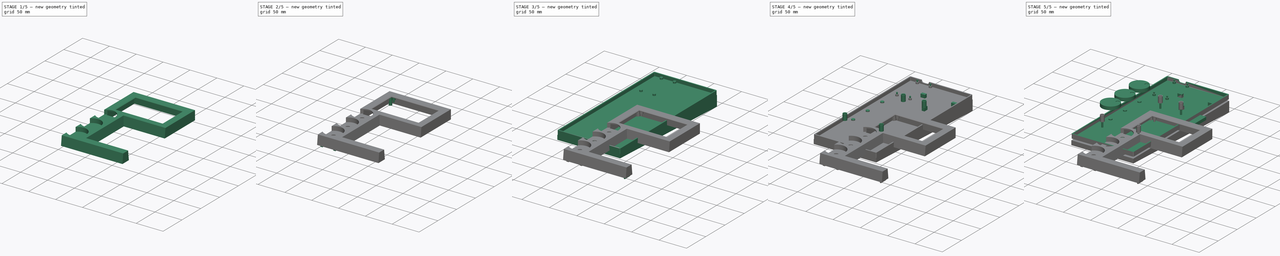
[diagram: build sequence overview — one tinted view per stage of 5, left to right]
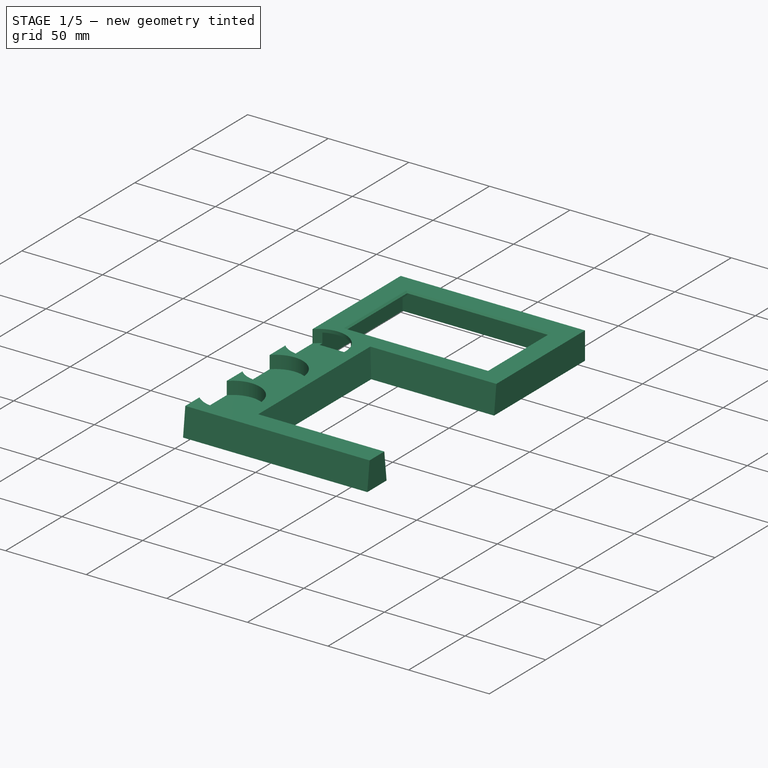
[diagram: stage 1 of 5 — iso view after this stage's code; geometry added in this stage tinted green]
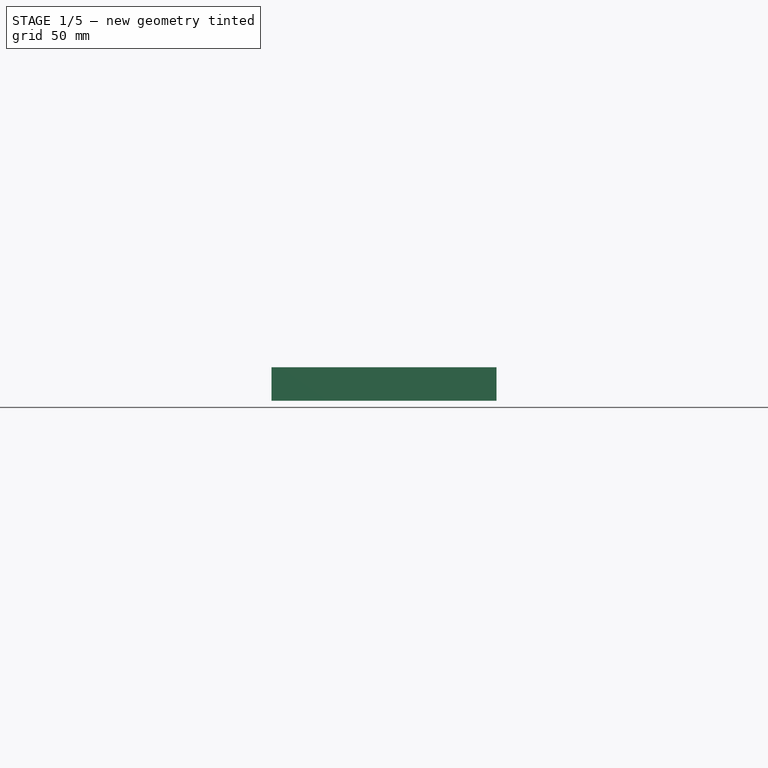
[diagram: stage 1 of 5 — front view after this stage's code; geometry added in this stage tinted green]
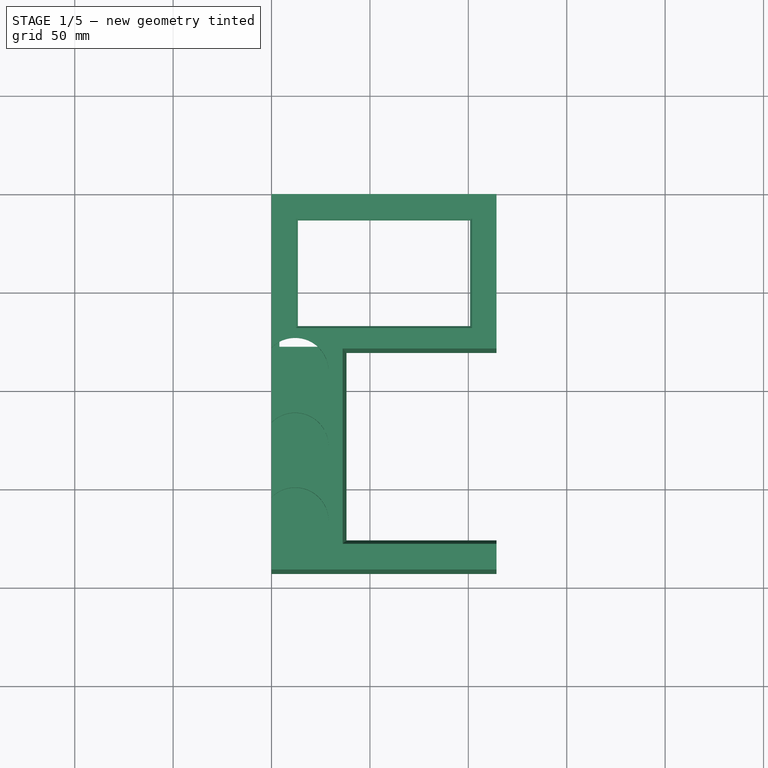
[diagram: stage 1 of 5 — top view after this stage's code; geometry added in this stage tinted green]
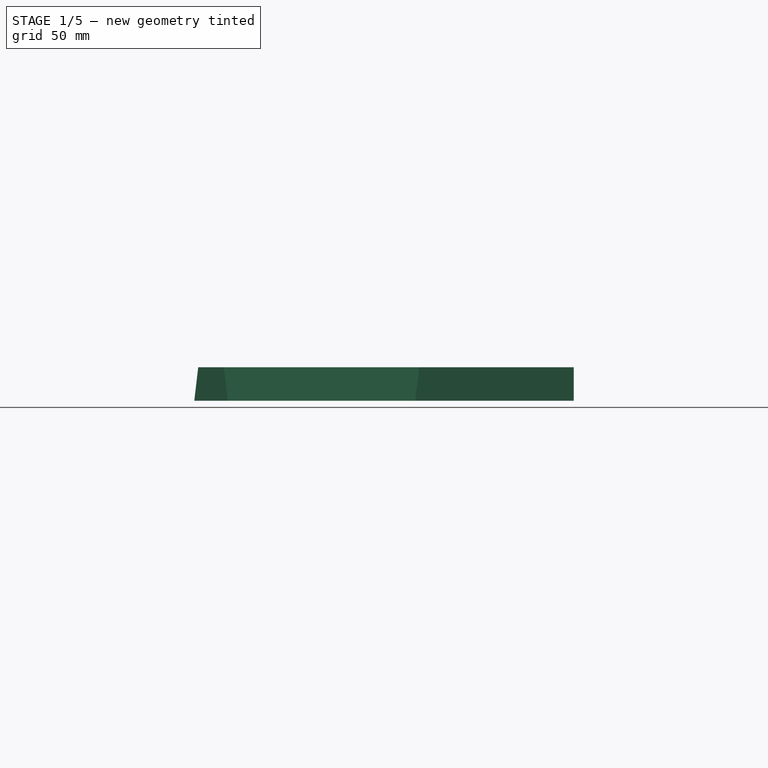
[diagram: stage 1 of 5 — right view after this stage's code; geometry added in this stage tinted green]
FCSTD DOCUMENT  (FreeCAD 0.19R24276 (Git))
Label: 20211026a
License: All rights reserved
LicenseURL: http://en.wikipedia.org/wiki/All_rights_reserved
objects: Sketcher::SketchObject×26, PartDesign::Pad×13, PartDesign::Pocket×10, App::Link×10, PartDesign::Plane×8, Part::FeaturePython×7, PartDesign::Body×7, PartDesign::Chamfer×5, Spreadsheet::Sheet×1, PartDesign::AdditiveLoft×1, PartDesign::AdditiveCylinder×1, PartDesign::AdditiveBox×1, Image::ImagePlane×1, Part::MultiFuse×1
note: 106 computed .brp shape members not serialized (recipe doc carries the construction recipe); baked Part::Feature solids carry a one-line shape summary decoded from their .brp
EXTERNAL_REF file=MX_Switch_1u.FCStd obj=Body002
EXTERNAL_REF file=LCD_12864.FCStd obj=Body007
EXTERNAL_REF file=MX_Switch_2u.FCStd obj=Body002
EXTERNAL_REF file=LCD_12864.FCStd obj=ImagePlane
EXTERNAL_REF file=20211025a-MiddlePlate.FCStd obj=Body002
EXTERNAL_REF file=FireBeetleMCU.FCStd obj=Body
EXTERNAL_REF file=EC11.FCStd obj=Body026003
EXTERNAL_REF file=KCD11_Rocker_Switch.FCStd obj=Body

FEATURE [Sketcher::SketchObject] Sketch007
  FullyConstrained = true
  MapMode = 5
  Support = -> [XY_Plane003]
  expr: Constraints[8] = <<var>>.vLCDBezWidth
  expr: Constraints[9] = <<var>>.vLCDBezHeight
  expr: Constraints[10] = <<var>>.vLCDPad + 1
  expr: Constraints[11] = <<var>>.vLCDPad + 1
  sketch-geometry (4):
    g0: LineSegment StartX=13.4 StartY=-13.4 StartZ=0 EndX=100.9 EndY=-13.4 EndZ=0
    g1: LineSegment StartX=100.9 StartY=-13.4 StartZ=0 EndX=100.9 EndY=-67.1 EndZ=0
    g2: LineSegment StartX=100.9 StartY=-67.1 StartZ=0 EndX=13.4 EndY=-67.1 EndZ=0
    g3: LineSegment StartX=13.4 StartY=-67.1 StartZ=0 EndX=13.4 EndY=-13.4 EndZ=0
  constraints (12):
    c: Coincident(g0,g1)
    c: Coincident(g1,g2)
    c: Coincident(g2,g3)
    c: Coincident(g3,g0)
    c: Horizontal(g0)
    c: Horizontal(g2)
    c: Vertical(g1)
    c: Vertical(g3)
    c: DistanceX(g0,g0) = 87.5
    c: DistanceY(g3,g3) = 53.7
    c: DistanceX(g-1,g0) = 13.4
    c: DistanceY(g0,g-1) = 13.4
FEATURE [PartDesign::Pocket] Pocket001  label="PocketForScreen"
  BaseFeature = -> AdditiveLoft
  Length = 5
  Length2 = 100
  Profile = -> Sketch007
  Refine = true
  Reversed = true
  Type = 1
FEATURE [PartDesign::Chamfer] Chamfer
  Angle = 45
  Base = -> Pocket001 [Edge30,Edge36,Edge33,Edge35]
  BaseFeature = -> Pocket001
  ChamferType = 0
  FlipDirection = false
  Refine = true
  Size = 1
  Size2 = 1
  SupportTransform = false
FEATURE [PartDesign::Plane] DatumPlane001
  Length = 174.137
  Placement = pos=(0,0,17) rot=(0,0,1;0rad)
  ResizeMode = 0
  Width = 252.637
FEATURE [Sketcher::SketchObject] Sketch008
  ExternalGeometry = -> [Sketch006]
  FullyConstrained = true
  MapMode = 5
  Placement = pos=(0,0,17) rot=(0,0,1;0rad)
  Support = -> [DatumPlane001]
  sketch-geometry (6):
    g0: GeomPoint X=36.1 Y=-128.125 Z=0
    g1: Circle CenterX=12 CenterY=-128.125 CenterZ=0 NormalX=0 NormalY=0 NormalZ=1 AngleXU=0 Radius=17
    g2: Circle CenterX=12 CenterY=-90.125 CenterZ=0 NormalX=0 NormalY=0 NormalZ=1 AngleXU=0 Radius=17
    g3: Circle CenterX=12 CenterY=-166.125 CenterZ=0 NormalX=0 NormalY=0 NormalZ=1 AngleXU=0 Radius=17
    g4: LineSegment StartX=12 StartY=-90.125 StartZ=0 EndX=12 EndY=-128.125 EndZ=0
    g5: LineSegment StartX=12 StartY=-128.125 StartZ=0 EndX=12 EndY=-166.125 EndZ=0
  constraints (14):
    c: Symmetric(g-3,g-3,g0)
    c: Horizontal(g0,g1)
    c: DistanceX(g-1,g1) = 12  'ScrubberOffset'
    c: Equal(g1,g2)
    c: Equal(g1,g3)
    c: Vertical(g1,g3)
    c: Radius(g1) = 17  'ScrubberRadius'
    c: DistanceY(g3,g1) = 38  'ScrubberSpacing'
    c: Vertical(g1,g2)
    c: Coincident(g4,g2)
    c: Coincident(g4,g1)
    c: Coincident(g5,g1)
    c: Coincident(g5,g3)
    c: Equal(g4,g5)
FEATURE [PartDesign::Pocket] Pocket002  label="PocketForScrubbers"
  BaseFeature = -> Chamfer
  Length = 8
  Length2 = 100
  Profile = -> Sketch008
  Refine = true
  Type = 0
FEATURE [PartDesign::Plane] DatumPlane005
  Length = 174.137
  MapMode = 5
  Placement = pos=(0,0,0) rot=(1,0,0;3.14159rad)
  ResizeMode = 0
  Width = 252.637
FEATURE [Sketcher::SketchObject] Sketch022
  ExternalGeometry = -> [Pocket002]
  FullyConstrained = true
  MapMode = 5
  Placement = pos=(0,0,0) rot=(1,0,0;3.14159rad)
  Support = -> [DatumPlane005]
  sketch-geometry (10):
    g0: LineSegment StartX=0 StartY=0 StartZ=0 EndX=114.3 EndY=0 EndZ=0
    g1: LineSegment StartX=114.3 StartY=0 StartZ=0 EndX=114.3 EndY=80.5 EndZ=0
    g2: LineSegment StartX=114.3 StartY=80.5 StartZ=0 EndX=38.1 EndY=80.5 EndZ=0
    g3: LineSegment StartX=38.1 StartY=80.5 StartZ=0 EndX=38.1 EndY=67.1 EndZ=0
    g4: LineSegment StartX=38.1 StartY=67.1 StartZ=0 EndX=0 EndY=67.1 EndZ=0
    g5: LineSegment StartX=0 StartY=67.1 StartZ=0 EndX=0 EndY=0 EndZ=0
    g6: LineSegment StartX=4 StartY=77.5 StartZ=0 EndX=110.3 EndY=77.5 EndZ=0
    g7: LineSegment StartX=110.3 StartY=77.5 StartZ=0 EndX=110.3 EndY=4 EndZ=0
    g8: LineSegment StartX=110.3 StartY=4 StartZ=0 EndX=4 EndY=4 EndZ=0
    g9: LineSegment StartX=4 StartY=4 StartZ=0 EndX=4 EndY=77.5 EndZ=0
  constraints (27):
    c: Coincident(g-1,g0)
    c: PointOnObject(g0,g-1)
    c: Coincident(g0,g1)
    c: Coincident(g1,g-3)
    c: Coincident(g1,g2)
    c: Coincident(g2,g-4)
    c: Coincident(g2,g3)
    c: Vertical(g3)
    c: Coincident(g3,g4)
    c: Horizontal(g4)
    c: Coincident(g4,g5)
    c: Coincident(g5,g0)
    c: Vertical(g5)
    c: Vertical(g1)
    c: Horizontal(g-5,g3)
    c: Horizontal(g6)
    c: Coincident(g6,g7)
    c: Vertical(g7)
    c: Coincident(g7,g8)
    c: Horizontal(g8)
    c: Coincident(g8,g9)
    c: Vertical(g9)
    c: Distance(g6,g1) = 4
    c: Distance(g8,g0) = 4
    c: Distance(g8,g5) = 4
    c: Coincident(g9,g6)
    c: Distance(g6,g2) = 3
FEATURE [PartDesign::Pocket] Pocket006  label="PocketRearLCD"
  BaseFeature = -> Pocket002
  Length = 15
  Length2 = 100
  Profile = -> Sketch022
  Refine = true
  Type = 0
FEATURE [Sketcher::SketchObject] Sketch023
  ExternalGeometry = -> [Pocket006]
  FullyConstrained = true
  MapMode = 5
  Placement = pos=(0,0,0) rot=(1,0,0;3.14159rad)
  Support = -> [DatumPlane005]
  sketch-geometry (4):
    g0: LineSegment StartX=38.1 StartY=178.75 StartZ=0 EndX=111.3 EndY=178.75 EndZ=0
    g1: LineSegment StartX=111.3 StartY=178.75 StartZ=0 EndX=111.3 EndY=189.8 EndZ=0
    g2: LineSegment StartX=111.3 StartY=189.8 StartZ=0 EndX=38.1 EndY=189.8 EndZ=0
    g3: LineSegment StartX=38.1 StartY=189.8 StartZ=0 EndX=38.1 EndY=178.75 EndZ=0
  constraints (12):
    c: Coincident(g0,g1)
    c: Coincident(g1,g2)
    c: Coincident(g2,g3)
    c: Coincident(g3,g0)
    c: Horizontal(g0)
    c: Horizontal(g2)
    c: Vertical(g1)
    c: DistanceX(g1,g-4) = 3
    c: DistanceY(g-3,g0) = 3
    c: DistanceY(g1,g-4) = 3
    c: Vertical(g3)
    c: Vertical(g0,g-3)
FEATURE [PartDesign::Pocket] Pocket007  label="PocketRearChords"
  BaseFeature = -> Pocket006
  Length = 15
  Length2 = 100
  Profile = -> Sketch023
  Refine = true
  Type = 0
FEATURE [Sketcher::SketchObject] Sketch024
  ExternalGeometry = -> [Pocket007]
  FullyConstrained = true
  MapMode = 5
  Placement = pos=(0,0,0) rot=(1,0,0;3.14159rad)
  Support = -> [DatumPlane005]
  sketch-geometry (4):
    g0: LineSegment StartX=4 StartY=189.8 StartZ=0 EndX=32.1 EndY=189.8 EndZ=0
    g1: LineSegment StartX=32.1 StartY=189.8 StartZ=0 EndX=32.1 EndY=75.125 EndZ=0
    g2: LineSegment StartX=32.1 StartY=75.125 StartZ=0 EndX=4 EndY=75.125 EndZ=0
    g3: LineSegment StartX=4 StartY=75.125 StartZ=0 EndX=4 EndY=189.8 EndZ=0
  constraints (11):
    c: Coincident(g0,g1)
    c: Coincident(g1,g2)
    c: Coincident(g2,g3)
    c: Coincident(g3,g0)
    c: Horizontal(g0)
    c: Horizontal(g2)
    c: Vertical(g1)
    c: Vertical(g3)
    c: DistanceX(g1,g-4) = 6
    c: Horizontal(g-3,g0)
    c: Coincident(g2,g-5)
FEATURE [PartDesign::Pocket] Pocket008  label="PocketBehindScrubbers"
  BaseFeature = -> Pocket007
  Length = 8
  Length2 = 100
  Profile = -> Sketch024
  Refine = true
  Type = 0
FEATURE [PartDesign::Body] Body003  label="TopShell"
  Group = -> [Sketch005,Sketch006,AdditiveLoft,Sketch007,Pocket001,Chamfer,DatumPlane001,Sketch008,Pocket002,DatumPlane005,Sketch022,Pocket006,Sketch023,Pocket007,Sketch024,Pocket008,Sketch025,Pocket009,Sketch026,Pad009,Sketch027,Pad010,DatumPlane006,Sketch028,Pad011,Chamfer008,Sketch031,Pad013,Chamfer009,DatumPlane008,Sketch032,Pad014]
  Origin = -> Origin003
  Placement = pos=(-57.15,125.975,17) rot=(0,0,1;0rad)
  Tip = -> Pad014
  expr: .Placement.Base.x = <<var>>.vBoxWidth / -2
  expr: .Placement.Base.y = <<var>>.vBoxDepth / 2

RESOLVED EXTERNAL PARTS (link-assembly join: the EXTERNAL_REF files above that resolve inside this repo's crawl, each included once):
---- part 20211025a-MiddlePlate.FCStd = doc fcstd_b56fbbda61c4 (51012 chars; too large to inline — full recipe in that document) ----
---- part EC11.FCStd = doc fcstd_76f9c0a2fce1 ----
FCSTD DOCUMENT  (FreeCAD 0.19R24276 (Git))
Label: EC11
License: All rights reserved
LicenseURL: http://en.wikipedia.org/wiki/All_rights_reserved
objects: PartDesign::AdditiveBox×1, PartDesign::AdditiveCylinder×1, PartDesign::Body×1
note: 5 computed .brp shape members not serialized (recipe doc carries the construction recipe); baked Part::Feature solids carry a one-line shape summary decoded from their .brp

FEATURE [PartDesign::AdditiveBox] Box012
  AttacherType = Attacher::AttachEngine3D
  AttachmentOffset = pos=(-6,-6,0) rot=(0,0,1;0rad)
  Height = 8.6
  Length = 12
  MapMode = 5
  Placement = pos=(-6,-6,0) rot=(0,0,1;0rad)
  Refine = true
  Support = -> [XY_Plane029]
  Width = 12
FEATURE [PartDesign::AdditiveCylinder] Cylinder003
  Angle = 360
  AttacherType = Attacher::AttachEngine3D
  BaseFeature = -> Box012
  Height = 25
  Radius = 3
  Refine = true
FEATURE [PartDesign::Body] Body026003  label="EC11_Encoder"
  Group = -> [Box012,Cylinder003]
  Origin = -> Origin029
  Tip = -> Cylinder003
---- part FireBeetleMCU.FCStd = doc fcstd_9f7ac9a5001f ----
FCSTD DOCUMENT  (FreeCAD 0.19R24276 (Git))
Label: FireBeetleMCU
License: All rights reserved
LicenseURL: http://en.wikipedia.org/wiki/All_rights_reserved
objects: Sketcher::SketchObject×3, PartDesign::Pad×3, PartDesign::Plane×1, PartDesign::Fillet×1, PartDesign::Body×1
note: 13 computed .brp shape members not serialized (recipe doc carries the construction recipe); baked Part::Feature solids carry a one-line shape summary decoded from their .brp

FEATURE [Sketcher::SketchObject] Sketch
  FullyConstrained = true
  MapMode = 5
  Support = -> [XY_Plane]
  sketch-geometry (4):
    g0: LineSegment StartX=-12.7 StartY=60 StartZ=0 EndX=12.7 EndY=60 EndZ=0
    g1: LineSegment StartX=12.7 StartY=60 StartZ=0 EndX=12.7 EndY=0 EndZ=0
    g2: LineSegment StartX=12.7 StartY=0 StartZ=0 EndX=-12.7 EndY=0 EndZ=0
    g3: LineSegment StartX=-12.7 StartY=0 StartZ=0 EndX=-12.7 EndY=60 EndZ=0
  constraints (11):
    c: Coincident(g0,g1)
    c: Coincident(g1,g2)
    c: Coincident(g2,g3)
    c: Coincident(g3,g0)
    c: Horizontal(g0)
    c: Horizontal(g2)
    c: Vertical(g1)
    c: Vertical(g3)
    c: DistanceX(g2,g2) = 25.4
    c: DistanceY(g3,g3) = 60
    c: Symmetric(g2,g1,g-1)
FEATURE [PartDesign::Pad] Pad
  Direction = (1,1,1)
  Length = 1.6
  Length2 = 100
  Profile = -> Sketch
  Refine = true
  Type = 0
FEATURE [PartDesign::Plane] DatumPlane
  Length = 63.0384
  Placement = pos=(0,0,1.6) rot=(0,0,1;0rad)
  ResizeMode = 0
  Width = 98.0384
FEATURE [Sketcher::SketchObject] Sketch001
  FullyConstrained = true
  MapMode = 5
  Placement = pos=(0,0,1.6) rot=(0,0,1;0rad)
  Support = -> [DatumPlane]
  sketch-geometry (4):
    g0: LineSegment StartX=-4.15 StartY=8.5 StartZ=0 EndX=4.15 EndY=8.5 EndZ=0
    g1: LineSegment StartX=4.15 StartY=8.5 StartZ=0 EndX=4.15 EndY=-2 EndZ=0
    g2: LineSegment StartX=4.15 StartY=-2 StartZ=0 EndX=-4.15 EndY=-2 EndZ=0
    g3: LineSegment StartX=-4.15 StartY=-2 StartZ=0 EndX=-4.15 EndY=8.5 EndZ=0
  constraints (12):
    c: Coincident(g0,g1)
    c: Coincident(g1,g2)
    c: Coincident(g2,g3)
    c: Coincident(g3,g0)
    c: Horizontal(g0)
    c: Horizontal(g2)
    c: Vertical(g1)
    c: Vertical(g3)
    c: DistanceX(g0,g0) = 8.3
    c: DistanceY(g1,g1) = 10.5
    c: DistanceY(g1,g-1) = 2
    c: DistanceX(g-1,g1) = 4.15
FEATURE [PartDesign::Pad] Pad001
  BaseFeature = -> Pad
  Direction = (1,1,1)
  Length = 2.5
  Length2 = 100
  Profile = -> Sketch001
  Refine = true
  Type = 0
FEATURE [PartDesign::Fillet] Fillet
  Base = -> Pad001 [Edge26,Edge21,Edge20,Edge25]
  BaseFeature = -> Pad001
  Radius = 1
  Refine = true
  SupportTransform = false
FEATURE [Sketcher::SketchObject] Sketch002
  FullyConstrained = true
  MapMode = 5
  Placement = pos=(0,0,1.6) rot=(0,0,1;0rad)
  Support = -> [DatumPlane]
  sketch-geometry (4):
    g0: LineSegment StartX=-14 StartY=20 StartZ=0 EndX=-4 EndY=20 EndZ=0
    g1: LineSegment StartX=-4 StartY=20 StartZ=0 EndX=-4 EndY=12 EndZ=0
    g2: LineSegment StartX=-4 StartY=12 StartZ=0 EndX=-14 EndY=12 EndZ=0
    g3: LineSegment StartX=-14 StartY=12 StartZ=0 EndX=-14 EndY=20 EndZ=0
  constraints (12):
    c: Coincident(g0,g1)
    c: Coincident(g1,g2)
    c: Coincident(g2,g3)
    c: Coincident(g3,g0)
    c: Horizontal(g0)
    c: Horizontal(g2)
    c: Vertical(g1)
    c: Vertical(g3)
    c: DistanceY(g1,g1) = 8
    c: DistanceX(g0,g0) = 10
    c: DistanceX(g2,g-1) = 14
    c: DistanceY(g-1,g1) = 12
FEATURE [PartDesign::Pad] Pad002
  BaseFeature = -> Fillet
  Direction = (1,1,1)
  Length = 2.5
  Length2 = 100
  Profile = -> Sketch002
  Refine = true
  Type = 0
FEATURE [PartDesign::Body] Body  label="FireBeetleMCU"
  Group = -> [Sketch,Pad,DatumPlane,Sketch001,Pad001,Fillet,Sketch002,Pad002]
  Origin = -> Origin
  Tip = -> Pad002
---- part KCD11_Rocker_Switch.FCStd = doc fcstd_fbb51477b4ad ----
FCSTD DOCUMENT  (FreeCAD 0.19R24276 (Git))
Label: KCD11_Rocker_Switch
License: All rights reserved
LicenseURL: http://en.wikipedia.org/wiki/All_rights_reserved
objects: Sketcher::SketchObject×6, PartDesign::Pad×3, PartDesign::Plane×3, PartDesign::Chamfer×2, PartDesign::AdditiveLoft×1, PartDesign::Pocket×1, PartDesign::Body×1
note: 24 computed .brp shape members not serialized (recipe doc carries the construction recipe); baked Part::Feature solids carry a one-line shape summary decoded from their .brp

FEATURE [Sketcher::SketchObject] Sketch
  FullyConstrained = true
  MapMode = 5
  Support = -> [XY_Plane]
  sketch-geometry (4):
    g0: LineSegment StartX=-7.4 StartY=5.15 StartZ=0 EndX=7.4 EndY=5.15 EndZ=0
    g1: LineSegment StartX=7.4 StartY=5.15 StartZ=0 EndX=7.4 EndY=-5.15 EndZ=0
    g2: LineSegment StartX=7.4 StartY=-5.15 StartZ=0 EndX=-7.4 EndY=-5.15 EndZ=0
    g3: LineSegment StartX=-7.4 StartY=-5.15 StartZ=0 EndX=-7.4 EndY=5.15 EndZ=0
  constraints (11):
    c: Coincident(g0,g1)
    c: Coincident(g1,g2)
    c: Coincident(g2,g3)
    c: Coincident(g3,g0)
    c: Horizontal(g0)
    c: Horizontal(g2)
    c: Vertical(g1)
    c: Vertical(g3)
    c: DistanceX(g0,g0) = 14.8
    c: DistanceY(g3,g3) = 10.3
    c: Symmetric(g0,g1,g-1)
FEATURE [PartDesign::Pad] Pad
  Direction = (1,1,1)
  Length = 1.5
  Length2 = 100
  Profile = -> Sketch
  Refine = true
  Type = 0
FEATURE [PartDesign::Chamfer] Chamfer
  Angle = 45
  Base = -> Pad [Face6]
  BaseFeature = -> Pad
  ChamferType = 0
  FlipDirection = false
  Refine = true
  Size = 0.5
  Size2 = 1
  SupportTransform = false
FEATURE [Sketcher::SketchObject] Sketch005
  FullyConstrained = true
  MapMode = 5
  Placement = pos=(0,0,1.6) rot=(0,0,1;0rad)
  Support = -> [DatumPlane]
  sketch-geometry (4):
    g0: Circle CenterX=-44 CenterY=32.5 CenterZ=0 NormalX=0 NormalY=0 NormalZ=1 AngleXU=0 Radius=1.5
    g1: Circle CenterX=44 CenterY=32.5 CenterZ=0 NormalX=0 NormalY=0 NormalZ=1 AngleXU=0 Radius=1.5
    g2: Circle CenterX=-44 CenterY=-32.5 CenterZ=0 NormalX=0 NormalY=0 NormalZ=1 AngleXU=0 Radius=1.5
    g3: Circle CenterX=44 CenterY=-32.5 CenterZ=0 NormalX=0 NormalY=0 NormalZ=1 AngleXU=0 Radius=1.5
  constraints (11):
    c: Radius(g0) = 1.5
    c: Radius(g2) = 1.5
    c: Radius(g1) = 1.5
    c: Radius(g3) = 1.5
    c: DistanceX(g0,g1) = 88
    c: Horizontal(g0,g1)
    c: Horizontal(g2,g3)
    c: Vertical(g0,g2)
    c: Vertical(g1,g3)
    c: DistanceY(g2,g0) = 65
    c: Symmetric(g2,g1,g-1)
FEATURE [PartDesign::Pocket] Pocket001
  BaseFeature = -> Pocket
  Length = 5
  Length2 = 100
  Profile = -> Sketch005
  Refine = true
  Type = 1
FEATURE [PartDesign::Plane] DatumPlane001
  Length = 60
  MapMode = 5
  Placement = pos=(0,0,-2.5) rot=(1,0,0;3.14159rad)
  ResizeMode = 0
  Support = -> [Pad003]
  Width = 60
FEATURE [Sketcher::SketchObject] Sketch005
  AttachmentOffset = pos=(0,0,2.5) rot=(0,0,1;0rad)
  FullyConstrained = true
  MapMode = 5
  Placement = pos=(0,0,-5) rot=(1,0,0;3.14159rad)
  Support = -> [DatumPlane001]
  sketch-geometry (4):
    g0: LineSegment StartX=-5 StartY=5 StartZ=0 EndX=5 EndY=5 EndZ=0
    g1: LineSegment StartX=5 StartY=5 StartZ=0 EndX=5 EndY=-5 EndZ=0
    g2: LineSegment StartX=5 StartY=-5 StartZ=0 EndX=-5 EndY=-5 EndZ=0
    g3: LineSegment StartX=-5 StartY=-5 StartZ=0 EndX=-5 EndY=5 EndZ=0
  constraints (11):
    c: Coincident(g0,g1)
    c: Coincident(g1,g2)
    c: Coincident(g2,g3)
    c: Coincident(g3,g0)
    c: Horizontal(g0)
    c: Horizontal(g2)
    c: Vertical(g1)
    c: Vertical(g3)
    c: DistanceX(g0,g0) = 10
    c: Equal(g0,g3)
    c: Symmetric(g0,g1,g-1)
FEATURE [Sketcher::SketchObject] Sketch006
  FullyConstrained = true
  MapMode = 5
  Placement = pos=(0,0,-2.5) rot=(1,0,0;3.14159rad)
  Support = -> [DatumPlane001]
  sketch-geometry (4):
    g0: LineSegment StartX=-7 StartY=7 StartZ=0 EndX=7 EndY=7 EndZ=0
    g1: LineSegment StartX=7 StartY=7 StartZ=0 EndX=7 EndY=-7 EndZ=0
    g2: LineSegment StartX=7 StartY=-7 StartZ=0 EndX=-7 EndY=-7 EndZ=0
    g3: LineSegment StartX=-7 StartY=-7 StartZ=0 EndX=-7 EndY=7 EndZ=0
  constraints (11):
    c: Coincident(g0,g1)
    c: Coincident(g1,g2)
    c: Coincident(g2,g3)
    c: Coincident(g3,g0)
    c: Horizontal(g0)
    c: Horizontal(g2)
    c: Vertical(g1)
    c: Vertical(g3)
    c: Equal(g0,g3)
    c: DistanceX(g0,g0) = 14
    c: Symmetric(g0,g1,g-1)
FEATURE [PartDesign::AdditiveLoft] AdditiveLoft
  BaseFeature = -> Pad003
  Closed = false
  Profile = -> Sketch005
  Refine = true
  Ruled = false
  Sections = -> [Sketch006]
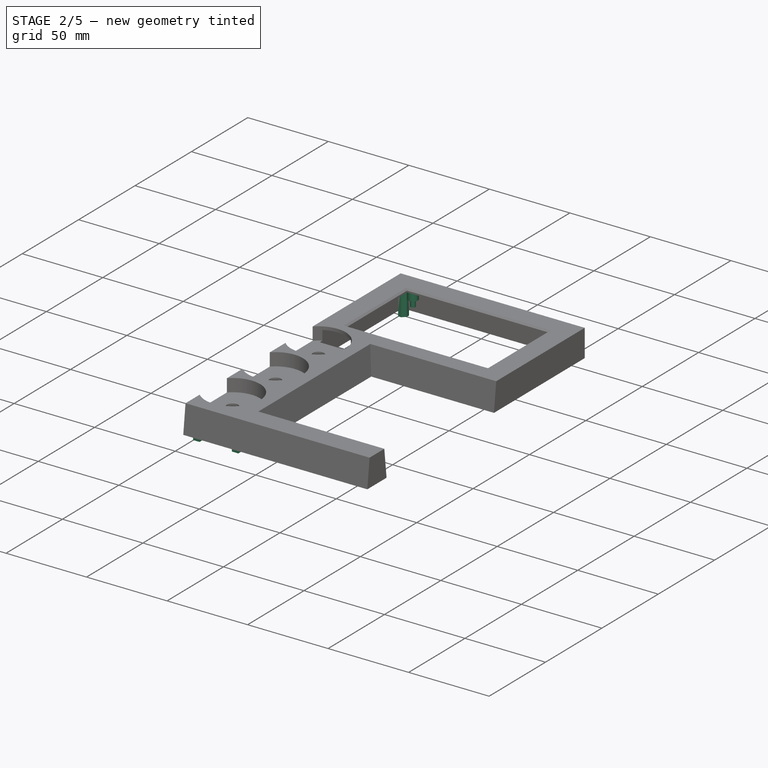
[diagram: stage 2 of 5 — iso view after this stage's code; geometry added in this stage tinted green]
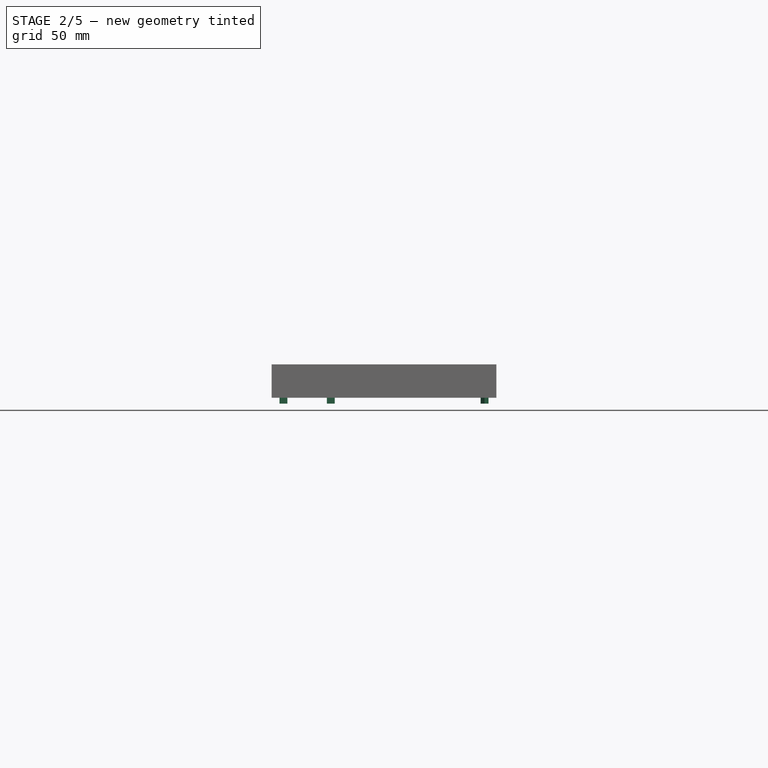
[diagram: stage 2 of 5 — front view after this stage's code; geometry added in this stage tinted green]
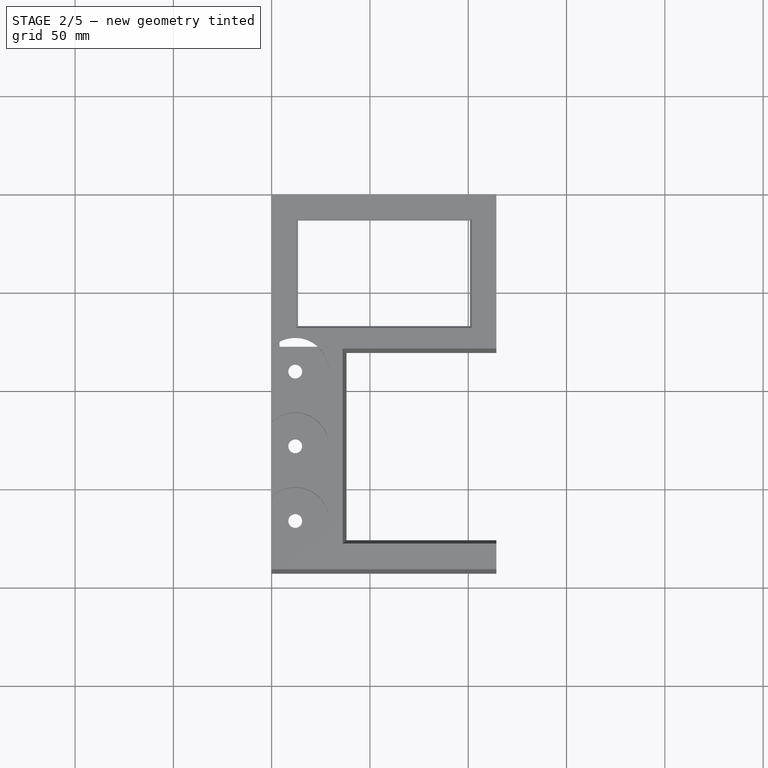
[diagram: stage 2 of 5 — top view after this stage's code; geometry added in this stage tinted green]
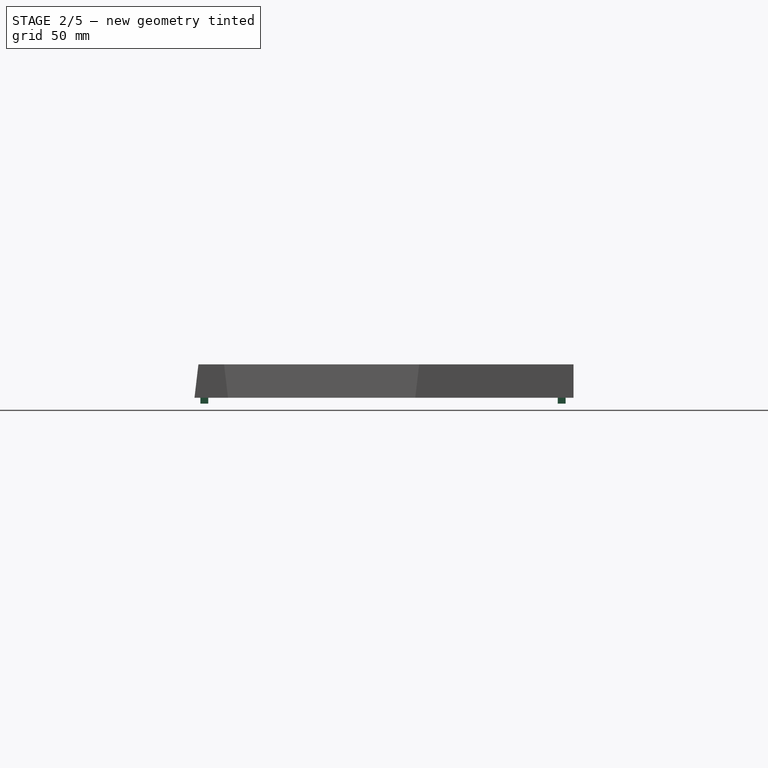
[diagram: stage 2 of 5 — right view after this stage's code; geometry added in this stage tinted green]
FEATURE [Sketcher::SketchObject] Sketch025
  FullyConstrained = true
  MapMode = 5
  Support = -> [XY_Plane003]
  expr: Constraints[2] = 128.13 + 38
  sketch-geometry (5):
    g0: Circle CenterX=12 CenterY=-166.13 CenterZ=0 NormalX=0 NormalY=0 NormalZ=1 AngleXU=0 Radius=3.5
    g1: Circle CenterX=12 CenterY=-128.13 CenterZ=0 NormalX=0 NormalY=0 NormalZ=1 AngleXU=0 Radius=3.5
    g2: Circle CenterX=12 CenterY=-90.13 CenterZ=0 NormalX=0 NormalY=0 NormalZ=1 AngleXU=0 Radius=3.5
    g3: LineSegment StartX=12 StartY=-166.13 StartZ=0 EndX=12 EndY=-128.13 EndZ=0
    g4: LineSegment StartX=12 StartY=-128.13 StartZ=0 EndX=12 EndY=-90.13 EndZ=0
  constraints (13):
    c: Radius(g0) = 3.5  'ScrubberHole'
    c: DistanceX(g-1,g0) = 12
    c: DistanceY(g0,g-1) = 166.13
    c: Equal(g0,g1)
    c: Equal(g0,g2)
    c: Vertical(g0,g1)
    c: Vertical(g0,g2)
    c: Coincident(g3,g0)
    c: Coincident(g3,g1)
    c: Coincident(g4,g1)
    c: Coincident(g4,g2)
    c: Equal(g3,g4)
    c: DistanceY(g4,g4) = 38
FEATURE [PartDesign::Pocket] Pocket009  label="PocketEncoderHoles"
  BaseFeature = -> Pocket008
  Length = 5
  Length2 = 100
  Profile = -> Sketch025
  Refine = true
  Reversed = true
  Type = 1
FEATURE [Sketcher::SketchObject] Sketch026
  AttachmentOffset = pos=(0,0,15) rot=(0,0,1;0rad)
  FullyConstrained = true
  MapMode = 5
  Placement = pos=(0,0,15) rot=(0,0,1;0rad)
  Support = -> [XY_Plane003]
  expr: Constraints[7] = <<var>>.vLCDHolderX
  expr: Constraints[8] = <<var>>.vLCDHolderY
  sketch-geometry (3):
    g0: Circle CenterX=13.125 CenterY=-7.85 CenterZ=0 NormalX=0 NormalY=0 NormalZ=1 AngleXU=0 Radius=3
    g1: Circle CenterX=101.125 CenterY=-7.85 CenterZ=0 NormalX=0 NormalY=0 NormalZ=1 AngleXU=0 Radius=3
    g2: Circle CenterX=101.125 CenterY=-72.85 CenterZ=0 NormalX=0 NormalY=0 NormalZ=1 AngleXU=0 Radius=3
  constraints (9):
    c: Radius(g0) = 3  'Radius'
    c: Equal(g0,g1)
    c: Equal(g0,g2)
    c: DistanceX(g0,g1) = 88
    c: Horizontal(g0,g1)
    c: DistanceY(g2,g1) = 65
    c: Vertical(g2,g1)
    c: DistanceX(g0) = 13.125
    c: DistanceY(g0) = -7.85
FEATURE [PartDesign::Pad] Pad009  label="PadLCDHolderA"
  BaseFeature = -> Pocket009
  Direction = (1,1,1)
  Length = 6
  Length2 = 100
  Profile = -> Sketch026
  Refine = true
  Reversed = true
  Type = 0
FEATURE [Sketcher::SketchObject] Sketch027
  AttachmentOffset = pos=(0,0,15) rot=(0,0,1;0rad)
  FullyConstrained = true
  MapMode = 5
  Placement = pos=(0,0,15) rot=(0,0,1;0rad)
  Support = -> [XY_Plane003]
  expr: Constraints[8] = <<var>>.vLCDHolderY
  expr: Constraints[7] = <<var>>.vLCDHolderX
  sketch-geometry (3):
    g0: Circle CenterX=13.125 CenterY=-7.85 CenterZ=0 NormalX=0 NormalY=0 NormalZ=1 AngleXU=0 Radius=1.5
    g1: Circle CenterX=101.125 CenterY=-7.85 CenterZ=0 NormalX=0 NormalY=0 NormalZ=1 AngleXU=0 Radius=1.5
    g2: Circle CenterX=101.125 CenterY=-72.85 CenterZ=0 NormalX=0 NormalY=0 NormalZ=1 AngleXU=0 Radius=1.5
  constraints (9):
    c: Radius(g0) = 1.5  'Radius'
    c: Equal(g0,g1)
    c: Equal(g0,g2)
    c: DistanceX(g0,g1) = 88
    c: Horizontal(g0,g1)
    c: DistanceY(g2,g1) = 65
    c: Vertical(g2,g1)
    c: DistanceX(g0) = 13.125
    c: DistanceY(g0) = -7.85
FEATURE [PartDesign::Pad] Pad010  label="PadLCDHolderB"
  BaseFeature = -> Pad009
  Direction = (1,1,1)
  Length = 10
  Length2 = 100
  Profile = -> Sketch027
  Refine = true
  Reversed = true
  Type = 0
FEATURE [PartDesign::Plane] DatumPlane006
  Length = 174.137
  MapMode = 5
  Placement = pos=(0,0,8) rot=(1,0,0;3.14159rad)
  ResizeMode = 0
  Width = 252.637
FEATURE [Sketcher::SketchObject] Sketch028
  ExternalGeometry = -> [Pad010]
  FullyConstrained = true
  MapMode = 5
  Placement = pos=(0,0,8) rot=(1,0,0;3.14159rad)
  Support = -> [DatumPlane006]
  sketch-geometry (16):
    g0: LineSegment StartX=4 StartY=110 StartZ=0 EndX=12 EndY=110 EndZ=0
    g1: LineSegment StartX=12 StartY=110 StartZ=0 EndX=12 EndY=106 EndZ=0
    g2: LineSegment StartX=12 StartY=106 StartZ=0 EndX=4 EndY=106 EndZ=0
    g3: LineSegment StartX=4 StartY=106 StartZ=0 EndX=4 EndY=110 EndZ=0
    g4: LineSegment StartX=4 StartY=150 StartZ=0 EndX=12 EndY=150 EndZ=0
    g5: LineSegment StartX=12 StartY=150 StartZ=0 EndX=12 EndY=146 EndZ=0
    g6: LineSegment StartX=12 StartY=146 StartZ=0 EndX=4 EndY=146 EndZ=0
    g7: LineSegment StartX=4 StartY=146 StartZ=0 EndX=4 EndY=150 EndZ=0
    g8: LineSegment StartX=32.1 StartY=150 StartZ=0 EndX=24.1 EndY=150 EndZ=0
    g9: LineSegment StartX=24.1 StartY=150 StartZ=0 EndX=24.1 EndY=146 EndZ=0
    g10: LineSegment StartX=24.1 StartY=146 StartZ=0 EndX=32.1 EndY=146 EndZ=0
    g11: LineSegment StartX=32.1 StartY=146 StartZ=0 EndX=32.1 EndY=150 EndZ=0
    g12: LineSegment StartX=24.1 StartY=106 StartZ=0 EndX=32.1 EndY=106 EndZ=0
    g13: LineSegment StartX=32.1 StartY=106 StartZ=0 EndX=32.1 EndY=110 EndZ=0
    g14: LineSegment StartX=32.1 StartY=110 StartZ=0 EndX=24.1 EndY=110 EndZ=0
    g15: LineSegment StartX=24.1 StartY=110 StartZ=0 EndX=24.1 EndY=106 EndZ=0
  constraints (48):
    c: Coincident(g0,g1)
    c: Coincident(g1,g2)
    c: Coincident(g2,g3)
    c: Coincident(g3,g0)
    c: Horizontal(g0)
    c: Horizontal(g2)
    c: Vertical(g1)
    c: Vertical(g3)
    c: DistanceX(g2,g2) = 8
    c: DistanceX(g-1,g2) = 4
    c: DistanceY(g1,g1) = 4
    c: DistanceY(g-1,g2) = 106
    c: Coincident(g4,g5)
    c: Coincident(g5,g6)
    c: Coincident(g6,g7)
    c: Coincident(g7,g4)
    c: Horizontal(g4)
    c: Horizontal(g6)
    c: Vertical(g5)
    c: Vertical(g7)
    c: Coincident(g8,g9)
    c: Coincident(g9,g10)
    c: Coincident(g10,g11)
    c: Coincident(g11,g8)
    c: Horizontal(g8)
    c: Horizontal(g10)
    c: Vertical(g9)
    c: Vertical(g11)
    c: Coincident(g12,g13)
    c: Coincident(g13,g14)
    c: Coincident(g14,g15)
    c: Coincident(g15,g12)
    c: Horizontal(g12)
    c: Horizontal(g14)
    c: Vertical(g13)
    c: Vertical(g15)
    c: Vertical(g0,g6)
    c: Horizontal(g0,g14)
    c: Horizontal(g5,g9)
    c: Vertical(g-3,g12)
    c: Vertical(g10,g-3)
    c: Equal(g1,g15)
    c: Equal(g1,g9)
    c: Equal(g1,g5)
    c: Equal(g0,g14)
    c: Equal(g0,g10)
    c: Equal(g0,g6)
    c: DistanceY(g0,g6) = 36
FEATURE [PartDesign::Pad] Pad011  label="PadRibs"
  BaseFeature = -> Pad010
  Direction = (1,1,1)
  Length = 8
  Length2 = 100
  Profile = -> Sketch028
  Refine = true
  Type = 0
FEATURE [PartDesign::Chamfer] Chamfer008
  Angle = 45
  Base = -> Pad011 [Vertex107,Edge158,Edge153,Edge148,Edge162]
  BaseFeature = -> Pad011
  ChamferType = 0
  FlipDirection = false
  Refine = true
  Size = 6
  Size2 = 1
  SupportTransform = false
FEATURE [PartDesign::Body] Body009  label="BottomShell5degree"
  Group = -> [Sketch029,DatumPlane007,Pad012,Sketch030,Pocket010]
  Origin = -> Origin009
  Placement = pos=(0,0,15) rot=(0,0,1;0rad)
  Tip = -> Pocket010
FEATURE [App::Link] Link008  label="KC11_Rocker_Switch"
  LinkPlacement = pos=(47.57,126,5.99999) rot=(-0.57735,0.57735,0.57735;2.0944rad)
  LinkedObject = -> <external KCD11_Rocker_Switch.FCStd>#Body
  Placement = pos=(47.57,126,5.99999) rot=(-0.57735,0.57735,0.57735;2.0944rad)
FEATURE [App::Link] Link009  label="RST_Button"
  LinkPlacement = pos=(-44,120,5.99999) rot=(-1,0,0;1.5708rad)
  LinkedObject = -> <external EC11.FCStd>#Body026003
  Placement = pos=(-44,120,5.99999) rot=(-1,0,0;1.5708rad)
  Scale = 0.5
  ScaleVector = (0.5,0.5,0.5)
FEATURE [Sketcher::SketchObject] Sketch031
  AttachmentOffset = pos=(0,0,-7) rot=(0,0,1;0rad)
  ExternalGeometry = -> [Chamfer008]
  FullyConstrained = true
  MapMode = 5
  Placement = pos=(0,0,15) rot=(1,0,0;3.14159rad)
  Support = -> [DatumPlane006]
  sketch-geometry (16):
    g0: LineSegment StartX=4 StartY=189.8 StartZ=0 EndX=8 EndY=189.8 EndZ=0
    g1: LineSegment StartX=8 StartY=189.8 StartZ=0 EndX=8 EndY=185.8 EndZ=0
    g2: LineSegment StartX=8 StartY=185.8 StartZ=0 EndX=4 EndY=185.8 EndZ=0
    g3: LineSegment StartX=4 StartY=185.8 StartZ=0 EndX=4 EndY=189.8 EndZ=0
    g4: LineSegment StartX=32.1 StartY=189.8 StartZ=0 EndX=28.1 EndY=189.8 EndZ=0
    g5: LineSegment StartX=28.1 StartY=189.8 StartZ=0 EndX=28.1 EndY=185.8 EndZ=0
    g6: LineSegment StartX=28.1 StartY=185.8 StartZ=0 EndX=32.1 EndY=185.8 EndZ=0
    g7: LineSegment StartX=32.1 StartY=185.8 StartZ=0 EndX=32.1 EndY=189.8 EndZ=0
    g8: LineSegment StartX=4 StartY=4 StartZ=0 EndX=8 EndY=4 EndZ=0
    g9: LineSegment StartX=8 StartY=4 StartZ=0 EndX=8 EndY=8 EndZ=0
    g10: LineSegment StartX=8 StartY=8 StartZ=0 EndX=4 EndY=8 EndZ=0
    g11: LineSegment StartX=4 StartY=8 StartZ=0 EndX=4 EndY=4 EndZ=0
    g12: LineSegment StartX=110.3 StartY=4 StartZ=0 EndX=106.3 EndY=4 EndZ=0
    g13: LineSegment StartX=106.3 StartY=4 StartZ=0 EndX=106.3 EndY=8 EndZ=0
    g14: LineSegment StartX=106.3 StartY=8 StartZ=0 EndX=110.3 EndY=8 EndZ=0
    g15: LineSegment StartX=110.3 StartY=8 StartZ=0 EndX=110.3 EndY=4 EndZ=0
  constraints (44):
    c: Coincident(g0,g1)
    c: Coincident(g1,g2)
    c: Coincident(g2,g3)
    c: Coincident(g3,g0)
    c: Horizontal(g0)
    c: Horizontal(g2)
    c: Vertical(g1)
    c: Vertical(g3)
    c: Coincident(g0,g-3)
    c: DistanceY(g1,g1) = 4
    c: Equal(g1,g2)
    c: Coincident(g4,g5)
    c: Coincident(g5,g6)
    c: Coincident(g6,g7)
    c: Coincident(g7,g4)
    c: Horizontal(g4)
    c: Horizontal(g6)
    c: Vertical(g5)
    c: Vertical(g7)
    c: Coincident(g4,g-4)
    c: Equal(g2,g5)
    c: Equal(g2,g6)
    c: Coincident(g8,g9)
    c: Coincident(g9,g10)
    c: Coincident(g10,g11)
    c: Coincident(g11,g8)
    c: Horizontal(g8)
    c: Horizontal(g10)
    c: Vertical(g9)
    c: Vertical(g11)
    c: Coincident(g8,g-5)
    c: Coincident(g12,g13)
    c: Coincident(g13,g14)
    c: Coincident(g14,g15)
    c: Coincident(g15,g12)
    c: Horizontal(g12)
    c: Horizontal(g14)
    c: Vertical(g13)
    c: Vertical(g15)
    c: Coincident(g12,g-6)
    c: Equal(g2,g9)
    c: Equal(g9,g13)
    c: Equal(g9,g10)
    c: Equal(g9,g12)
FEATURE [PartDesign::Pad] Pad013
  BaseFeature = -> Chamfer008
  Direction = (1,1,1)
  Length = 18
  Length2 = 100
  Profile = -> Sketch031
  Refine = true
  Type = 0
FEATURE [PartDesign::Chamfer] Chamfer009
  Angle = 45
  Base = -> Pad013 [Edge104,Edge109,Edge209,Edge202]
  BaseFeature = -> Pad013
  ChamferType = 0
  FlipDirection = false
  Refine = true
  Size = 2
  Size2 = 1
  SupportTransform = false
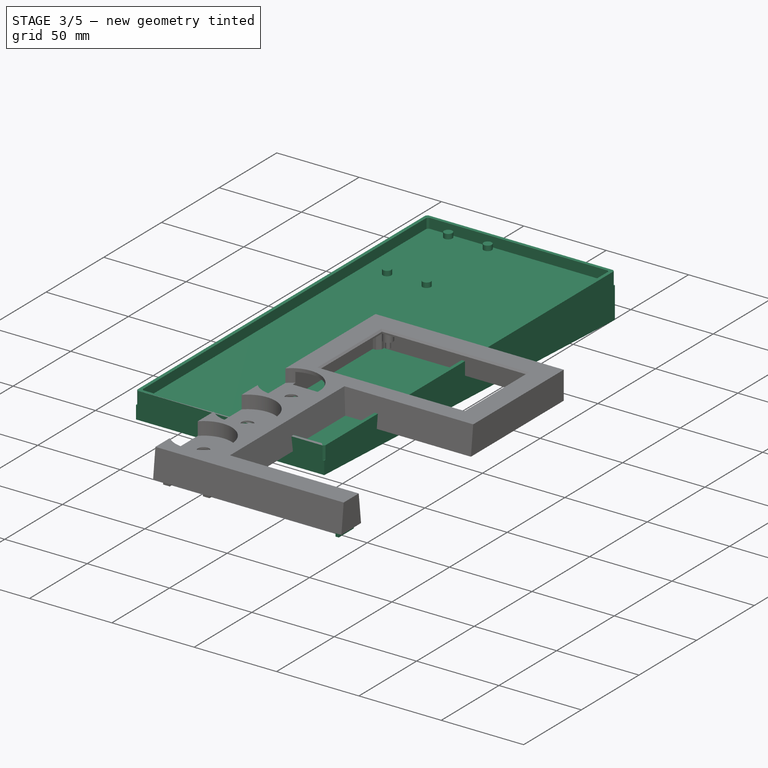
[diagram: stage 3 of 5 — iso view after this stage's code; geometry added in this stage tinted green]
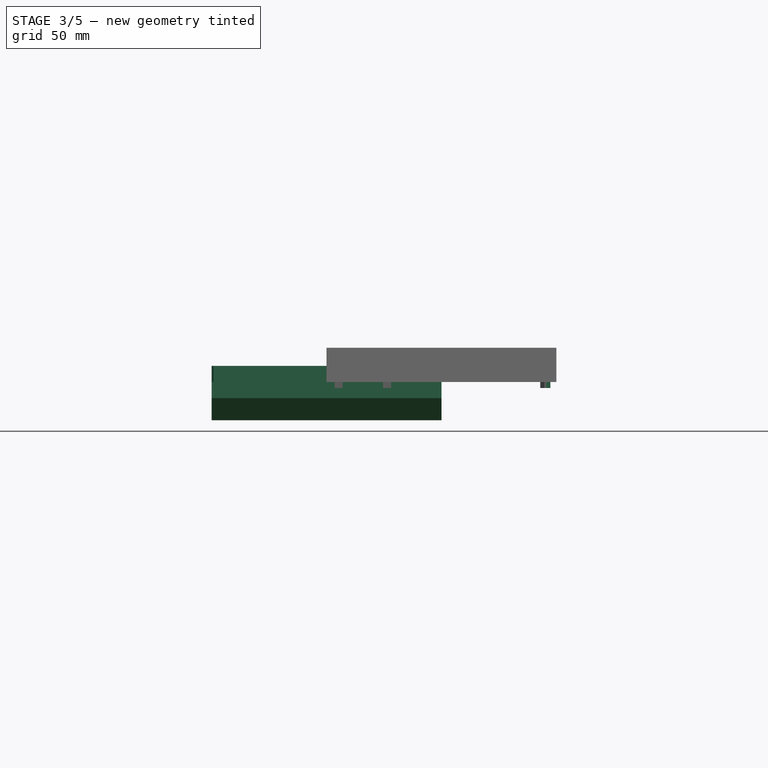
[diagram: stage 3 of 5 — front view after this stage's code; geometry added in this stage tinted green]
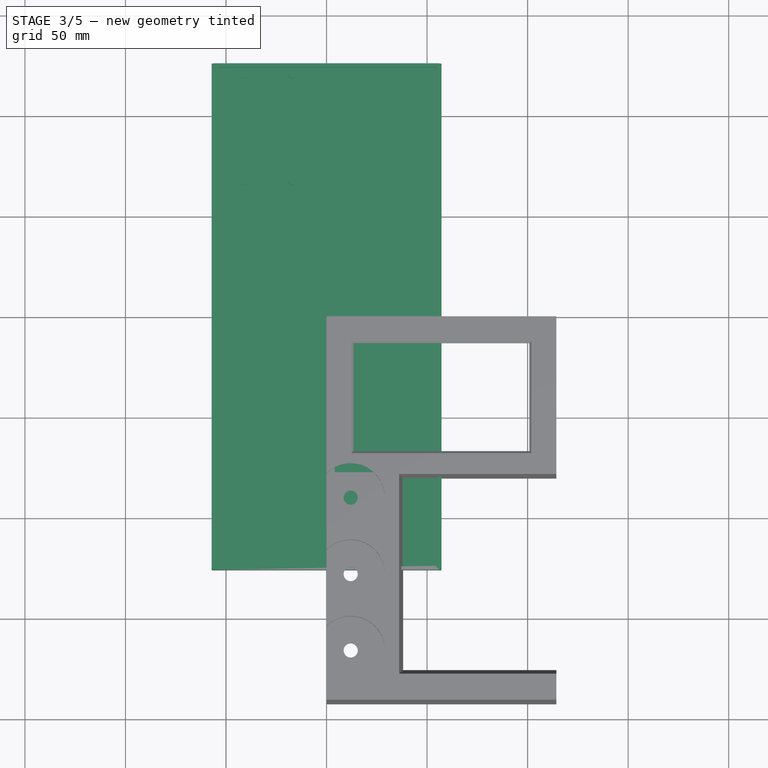
[diagram: stage 3 of 5 — top view after this stage's code; geometry added in this stage tinted green]
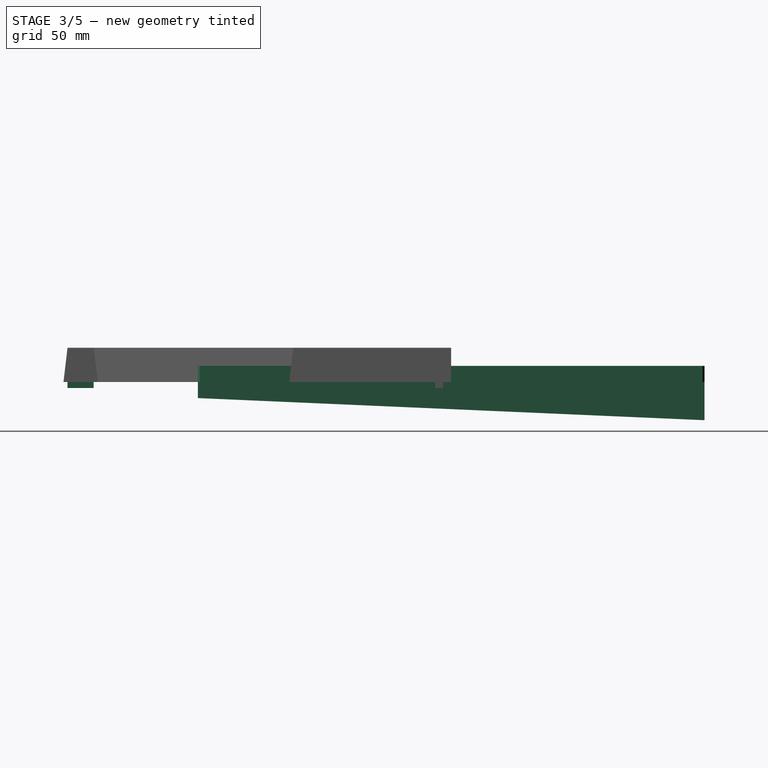
[diagram: stage 3 of 5 — right view after this stage's code; geometry added in this stage tinted green]
FEATURE [PartDesign::Chamfer] Chamfer004
  Angle = 45
  Base = -> Pocket [Edge2,Edge1,Edge5,Edge8,Edge20,Edge22,Edge17,Edge18]
  BaseFeature = -> Pocket
  ChamferType = 0
  FlipDirection = false
  Refine = true
  Size = 1
  Size2 = 1
  SupportTransform = false
FEATURE [Sketcher::SketchObject] Sketch029
  FullyConstrained = true
  MapMode = 5
  Support = -> [XY_Plane009]
  expr: Constraints[8] = <<var>>.vBoxWidth
  expr: Constraints[9] = <<var>>.vBoxDepth
  sketch-geometry (4):
    g0: LineSegment StartX=-57.15 StartY=125.975 StartZ=0 EndX=57.15 EndY=125.975 EndZ=0
    g1: LineSegment StartX=57.15 StartY=125.975 StartZ=0 EndX=57.15 EndY=-125.975 EndZ=0
    g2: LineSegment StartX=57.15 StartY=-125.975 StartZ=0 EndX=-57.15 EndY=-125.975 EndZ=0
    g3: LineSegment StartX=-57.15 StartY=-125.975 StartZ=0 EndX=-57.15 EndY=125.975 EndZ=0
  constraints (11):
    c: Coincident(g0,g1)
    c: Coincident(g1,g2)
    c: Coincident(g2,g3)
    c: Coincident(g3,g0)
    c: Horizontal(g0)
    c: Horizontal(g2)
    c: Vertical(g1)
    c: Vertical(g3)
    c: DistanceX(g0,g0) = 114.3
    c: DistanceY(g3,g3) = 251.95
    c: Symmetric(g0,g1,g-1)
FEATURE [PartDesign::Plane] DatumPlane007
  Length = 67.4311
  Placement = pos=(0,-125.975,0) rot=(-1,0,0;0.043633rad)
  ResizeMode = 0
  Width = 169.353
  expr: .Placement.Base.y = <<var>>.vBoxDepth / -2
FEATURE [PartDesign::Pad] Pad012
  Direction = (1,1,1)
  Length = 100
  Length2 = 100
  Profile = -> Sketch029
  Refine = true
  Reversed = true
  Type = 0
FEATURE [Sketcher::SketchObject] Sketch030
  AttachmentOffset = pos=(0,0,-8) rot=(0,0,1;0rad)
  FullyConstrained = false
  MapMode = 5
  Placement = pos=(0,-126.324,-7.99239) rot=(-1,0,0;0.043633rad)
  Support = -> [DatumPlane007]
  expr: .AttachmentOffset.Base.z = 0 - <<var>>.vBotHeight
  sketch-geometry (4):
    g0: LineSegment StartX=-82.8874 StartY=275.049 StartZ=0 EndX=82.0576 EndY=275.049 EndZ=0
    g1: LineSegment StartX=82.0576 StartY=275.049 StartZ=0 EndX=82.0576 EndY=-29.3715 EndZ=0
    g2: LineSegment StartX=82.0576 StartY=-29.3715 StartZ=0 EndX=-82.8874 EndY=-29.3715 EndZ=0
    g3: LineSegment StartX=-82.8874 StartY=-29.3715 StartZ=0 EndX=-82.8874 EndY=275.049 EndZ=0
  constraints (8):
    c: Coincident(g0,g1)
    c: Coincident(g1,g2)
    c: Coincident(g2,g3)
    c: Coincident(g3,g0)
    c: Horizontal(g0)
    c: Horizontal(g2)
    c: Vertical(g1)
    c: Vertical(g3)
FEATURE [PartDesign::Pocket] Pocket010
  BaseFeature = -> Pad012
  Length = 5
  Length2 = 100
  Profile = -> Sketch030
  Refine = true
  Type = 1
FEATURE [PartDesign::Plane] DatumPlane008
  Length = 174.137
  MapMode = 5
  Placement = pos=(0,0,15) rot=(1,0,0;3.14159rad)
  ResizeMode = 0
  Width = 252.637
FEATURE [Sketcher::SketchObject] Sketch032
  ExternalGeometry = -> [Chamfer009]
  FullyConstrained = true
  MapMode = 5
  Placement = pos=(0,0,15) rot=(1,0,0;3.14159rad)
  Support = -> [DatumPlane008]
  sketch-geometry (4):
    g0: LineSegment StartX=111.3 StartY=190.8 StartZ=0 EndX=109.3 EndY=190.8 EndZ=0
    g1: LineSegment StartX=109.3 StartY=190.8 StartZ=0 EndX=109.3 EndY=177.8 EndZ=0
    g2: LineSegment StartX=109.3 StartY=177.8 StartZ=0 EndX=111.3 EndY=177.8 EndZ=0
    g3: LineSegment StartX=111.3 StartY=177.8 StartZ=0 EndX=111.3 EndY=190.8 EndZ=0
  constraints (12):
    c: Coincident(g0,g1)
    c: Coincident(g1,g2)
    c: Coincident(g2,g3)
    c: Coincident(g3,g0)
    c: Horizontal(g0)
    c: Horizontal(g2)
    c: Vertical(g1)
    c: Vertical(g3)
    c: DistanceY(g3,g3) = 13
    c: DistanceX(g0,g0) = 2
    c: Vertical(g-3,g0)
    c: DistanceY(g-3,g0) = 1
FEATURE [PartDesign::Pad] Pad014
  BaseFeature = -> Chamfer009
  Direction = (1,1,1)
  Length = 18
  Length2 = 100
  Profile = -> Sketch032
  Refine = true
  Type = 0
FEATURE [Sketcher::SketchObject] Sketch001
  FullyConstrained = true
  MapMode = 5
  Support = -> [XY_Plane]
  sketch-geometry (4):
    g0: LineSegment StartX=-6.9 StartY=3.14 StartZ=0 EndX=6.9 EndY=3.14 EndZ=0
    g1: LineSegment StartX=6.9 StartY=3.14 StartZ=0 EndX=6.9 EndY=-3.14 EndZ=0
    g2: LineSegment StartX=6.9 StartY=-3.14 StartZ=0 EndX=-6.9 EndY=-3.14 EndZ=0
    g3: LineSegment StartX=-6.9 StartY=-3.14 StartZ=0 EndX=-6.9 EndY=3.14 EndZ=0
  constraints (11):
    c: Coincident(g0,g1)
    c: Coincident(g1,g2)
    c: Coincident(g2,g3)
    c: Coincident(g3,g0)
    c: Horizontal(g0)
    c: Horizontal(g2)
    c: Vertical(g1)
    c: Vertical(g3)
    c: DistanceY(g3,g3) = 6.28
    c: DistanceX(g0,g0) = 13.8
    c: Symmetric(g0,g1,g-1)
FEATURE [PartDesign::Plane] DatumPlane
  Length = 70.558
  MapMode = 2
  Placement = pos=(7.5,0,0) rot=(0,1,0;0.218166rad)
  ResizeMode = 0
  Width = 60.9212
FEATURE [Sketcher::SketchObject] Sketch002
  AttachmentOffset = pos=(-1,0,0) rot=(0,0,1;0rad)
  FullyConstrained = true
  MapMode = 5
  Placement = pos=(6.5237,0,0.21644) rot=(0,1,0;0.218166rad)
  Support = -> [DatumPlane]
  sketch-geometry (5):
    g0: LineSegment StartX=0 StartY=3.1 StartZ=0 EndX=-13.8 EndY=3.1 EndZ=0
    g1: LineSegment StartX=-13.8 StartY=3.1 StartZ=0 EndX=-13.8 EndY=-3.1 EndZ=0
    g2: LineSegment StartX=-13.8 StartY=-3.1 StartZ=0 EndX=0 EndY=-3.1 EndZ=0
    g3: LineSegment StartX=0 StartY=-3.1 StartZ=0 EndX=0 EndY=3.1 EndZ=0
    g4: GeomPoint X=-6.9 Y=0 Z=0
  constraints (13):
    c: Coincident(g0,g1)
    c: Coincident(g1,g2)
    c: Coincident(g2,g3)
    c: Coincident(g3,g0)
    c: Horizontal(g0)
    c: Horizontal(g2)
    c: Vertical(g1)
    c: Vertical(g3)
    c: PointOnObject(g0,g-2)
    c: DistanceY(g1,g1) = 6.2
    c: Symmetric(g0,g2,g4)
    c: Horizontal(g-1,g4)
    c: DistanceX(g0,g0) = 13.8
FEATURE [PartDesign::AdditiveLoft] AdditiveLoft
  BaseFeature = -> Chamfer
  Closed = false
  Profile = -> Sketch002
  Refine = true
  Ruled = false
  Sections = -> [Sketch001]
FEATURE [Sketcher::SketchObject] Sketch003
  FullyConstrained = true
  MapMode = 5
  Support = -> [XY_Plane]
  sketch-geometry (4):
    g0: LineSegment StartX=-6.6 StartY=4.5 StartZ=0 EndX=6.6 EndY=4.5 EndZ=0
    g1: LineSegment StartX=6.6 StartY=4.5 StartZ=0 EndX=6.6 EndY=-4.5 EndZ=0
    g2: LineSegment StartX=6.6 StartY=-4.5 StartZ=0 EndX=-6.6 EndY=-4.5 EndZ=0
    g3: LineSegment StartX=-6.6 StartY=-4.5 StartZ=0 EndX=-6.6 EndY=4.5 EndZ=0
  constraints (11):
    c: Coincident(g0,g1)
    c: Coincident(g1,g2)
    c: Coincident(g2,g3)
    c: Coincident(g3,g0)
    c: Horizontal(g0)
    c: Horizontal(g2)
    c: Vertical(g1)
    c: Vertical(g3)
    c: DistanceX(g2,g2) = 13.2
    c: DistanceY(g3,g3) = 9
    c: Symmetric(g0,g1,g-1)
FEATURE [PartDesign::Pad] Pad001
  BaseFeature = -> AdditiveLoft
  Direction = (1,1,1)
  Length = 8.7
  Length2 = 100
  Profile = -> Sketch003
  Refine = true
  Reversed = true
  Type = 0
FEATURE [PartDesign::Plane] DatumPlane001
  Length = 60
  MapMode = 5
  Placement = pos=(0,0,-8.7) rot=(1,0,0;3.14159rad)
  ResizeMode = 0
  Width = 60
FEATURE [Sketcher::SketchObject] Sketch004
  FullyConstrained = true
  MapMode = 5
  Placement = pos=(0,0,-8.7) rot=(1,0,0;3.14159rad)
  Support = -> [DatumPlane001]
  sketch-geometry (10):
    g0: LineSegment StartX=-5.2 StartY=1.85 StartZ=0 EndX=-4.8 EndY=1.85 EndZ=0
    g1: LineSegment StartX=-4.8 StartY=1.85 StartZ=0 EndX=-4.8 EndY=-1.85 EndZ=0
    g2: LineSegment StartX=-4.8 StartY=-1.85 StartZ=0 EndX=-5.2 EndY=-1.85 EndZ=0
    g3: LineSegment StartX=-5.2 StartY=-1.85 StartZ=0 EndX=-5.2 EndY=1.85 EndZ=0
    g4: LineSegment StartX=-0.2 StartY=1.85 StartZ=0 EndX=0.2 EndY=1.85 EndZ=0
    g5: LineSegment StartX=0.2 StartY=1.85 StartZ=0 EndX=0.2 EndY=-1.85 EndZ=0
    g6: LineSegment StartX=0.2 StartY=-1.85 StartZ=0 EndX=-0.2 EndY=-1.85 EndZ=0
    g7: LineSegment StartX=-0.2 StartY=-1.85 StartZ=0 EndX=-0.2 EndY=1.85 EndZ=0
    g8: GeomPoint X=0 Y=0 Z=0
    g9: GeomPoint X=-5 Y=0 Z=0
  constraints (25):
    c: Coincident(g0,g1)
    c: Coincident(g1,g2)
    c: Coincident(g2,g3)
    c: Coincident(g3,g0)
    c: Horizontal(g0)
    c: Horizontal(g2)
    c: Vertical(g1)
    c: Vertical(g3)
    c: Coincident(g4,g5)
    c: Coincident(g5,g6)
    c: Coincident(g6,g7)
    c: Coincident(g7,g4)
    c: Horizontal(g4)
    c: Horizontal(g6)
    c: Vertical(g5)
    c: Vertical(g7)
    c: Symmetric(g4,g5,g8)
    c: Coincident(g-1,g8)
    c: DistanceX(g6,g6) = 0.4
    c: DistanceY(g5,g5) = 3.7
    c: Equal(g7,g1)
    c: Equal(g4,g0)
    c: Symmetric(g0,g1,g9)
    c: Horizontal(g9,g-1)
    c: DistanceX(g9,g-1) = 5
FEATURE [PartDesign::Pad] Pad002
  BaseFeature = -> Pad001
  Direction = (1,1,1)
  Length = 6.4
  Length2 = 100
  Profile = -> Sketch004
  Refine = true
  Type = 0
FEATURE [PartDesign::Plane] DatumPlane002
  Length = 60
  MapMode = 5
  Placement = pos=(-5.2,0,0) rot=(0.57735,-0.57735,-0.57735;2.0944rad)
  ResizeMode = 0
  Width = 60
FEATURE [Sketcher::SketchObject] Sketch005
  FullyConstrained = true
  MapMode = 5
  Placement = pos=(-5.2,0,0) rot=(0.57735,-0.57735,-0.57735;2.0944rad)
  Support = -> [DatumPlane002]
  sketch-geometry (5):
    g0: LineSegment StartX=-0.5 StartY=-12 StartZ=0 EndX=0.5 EndY=-12 EndZ=0
    g1: LineSegment StartX=0.5 StartY=-12 StartZ=0 EndX=0.5 EndY=-14 EndZ=0
    g2: LineSegment StartX=0.5 StartY=-14 StartZ=0 EndX=-0.5 EndY=-14 EndZ=0
    g3: LineSegment StartX=-0.5 StartY=-14 StartZ=0 EndX=-0.5 EndY=-12 EndZ=0
    g4: GeomPoint X=0 Y=-13 Z=0
  constraints (13):
    c: Coincident(g0,g1)
    c: Coincident(g1,g2)
    c: Coincident(g2,g3)
    c: Coincident(g3,g0)
    c: Horizontal(g0)
    c: Horizontal(g2)
    c: Vertical(g1)
    c: Vertical(g3)
    c: PointOnObject(g4,g-2)
    c: Symmetric(g0,g1,g4)
    c: DistanceX(g0,g0) = 1
    c: DistanceY(g1,g1) = 2
    c: DistanceY(g0,g-1) = 12
FEATURE [PartDesign::Pocket] Pocket
  BaseFeature = -> Pad002
  Length = 5
  Length2 = 100
  Profile = -> Sketch005
  Refine = true
  Type = 1
FEATURE [PartDesign::Chamfer] Chamfer001
  Angle = 45
  Base = -> Pocket [Edge84,Edge68,Edge61,Edge77]
  BaseFeature = -> Pocket
  ChamferType = 0
  FlipDirection = false
  Refine = true
  Size = 0.5
  Size2 = 1
  SupportTransform = false
FEATURE [PartDesign::Body] Body  label="KC11_Rocker_Switch"
  Group = -> [Sketch,Pad,Chamfer,Sketch001,DatumPlane,Sketch002,AdditiveLoft,Sketch003,Pad001,DatumPlane001,Sketch004,Pad002,DatumPlane002,Sketch005,Pocket,Chamfer001]
  Origin = -> Origin
  Tip = -> Chamfer001
---- part LCD_12864.FCStd = doc fcstd_111537eec912 ----
FCSTD DOCUMENT  (FreeCAD 0.19R24276 (Git))
Label: LCD_12864
License: All rights reserved
LicenseURL: http://en.wikipedia.org/wiki/All_rights_reserved
objects: Sketcher::SketchObject×7, PartDesign::Pad×5, PartDesign::Plane×3, PartDesign::Pocket×2, Image::ImagePlane×1, PartDesign::Body×1
note: 25 computed .brp shape members not serialized (recipe doc carries the construction recipe); baked Part::Feature solids carry a one-line shape summary decoded from their .brp

FEATURE [Sketcher::SketchObject] Sketch003
  FullyConstrained = true
  MapMode = 5
  Support = -> [XY_Plane007]
  sketch-geometry (5):
    g0: LineSegment StartX=-46.5 StartY=35 StartZ=0 EndX=46.5 EndY=35 EndZ=0
    g1: LineSegment StartX=46.5 StartY=35 StartZ=0 EndX=46.5 EndY=-35 EndZ=0
    g2: LineSegment StartX=46.5 StartY=-35 StartZ=0 EndX=-46.5 EndY=-35 EndZ=0
    g3: LineSegment StartX=-46.5 StartY=-35 StartZ=0 EndX=-46.5 EndY=35 EndZ=0
    g4: GeomPoint X=0 Y=0 Z=0
  constraints (12):
    c: Coincident(g0,g1)
    c: Coincident(g1,g2)
    c: Coincident(g2,g3)
    c: Coincident(g3,g0)
    c: Horizontal(g0)
    c: Horizontal(g2)
    c: Vertical(g1)
    c: Vertical(g3)
    c: DistanceX(g0,g0) = 93
    c: DistanceY(g1,g1) = 70
    c: Symmetric(g2,g0,g4)
    c: Coincident(g4,g-1)
FEATURE [PartDesign::Pad] Pad003
  Direction = (1,1,1)
  Length = 1.6
  Length2 = 100
  Profile = -> Sketch003
  Refine = true
  Type = 0
FEATURE [PartDesign::Plane] DatumPlane
  Length = 60
  MapMode = 5
  Placement = pos=(0,0,1.6) rot=(0,0,1;0rad)
  ResizeMode = 0
  Support = -> [Pad003]
  Width = 60
FEATURE [Sketcher::SketchObject] Sketch
  FullyConstrained = true
  MapMode = 5
  Placement = pos=(0,0,1.6) rot=(0,0,1;0rad)
  Support = -> [DatumPlane]
  sketch-geometry (4):
    g0: LineSegment StartX=-44 StartY=26.85 StartZ=0 EndX=44 EndY=26.85 EndZ=0
    g1: LineSegment StartX=44 StartY=26.85 StartZ=0 EndX=44 EndY=-26.85 EndZ=0
    g2: LineSegment StartX=44 StartY=-26.85 StartZ=0 EndX=-44 EndY=-26.85 EndZ=0
    g3: LineSegment StartX=-44 StartY=-26.85 StartZ=0 EndX=-44 EndY=26.85 EndZ=0
  constraints (11):
    c: Coincident(g0,g1)
    c: Coincident(g1,g2)
    c: Coincident(g2,g3)
    c: Coincident(g3,g0)
    c: Horizontal(g0)
    c: Horizontal(g2)
    c: Vertical(g1)
    c: Vertical(g3)
    c: DistanceX(g0,g0) = 88
    c: DistanceY(g3,g3) = 53.7
    c: Symmetric(g0,g1,g-1)
FEATURE [PartDesign::Pad] Pad
  BaseFeature = -> Pad003
  Direction = (1,1,1)
  Length = 8.4
  Length2 = 100
  Profile = -> Sketch
  Refine = true
  Type = 0
FEATURE [PartDesign::Plane] DatumPlane001
  Length = 60
  MapMode = 5
  Placement = pos=(0,0,10) rot=(0,0,1;0rad)
  ResizeMode = 0
  Support = -> [Pad]
  Width = 60
FEATURE [Sketcher::SketchObject] Sketch004
  FullyConstrained = true
  MapMode = 5
  Placement = pos=(0,0,10) rot=(0,0,1;0rad)
  Support = -> [DatumPlane001]
  sketch-geometry (4):
    g0: LineSegment StartX=-35 StartY=19.4 StartZ=0 EndX=35 EndY=19.4 EndZ=0
    g1: LineSegment StartX=35 StartY=19.4 StartZ=0 EndX=35 EndY=-19.4 EndZ=0
    g2: LineSegment StartX=35 StartY=-19.4 StartZ=0 EndX=-35 EndY=-19.4 EndZ=0
    g3: LineSegment StartX=-35 StartY=-19.4 StartZ=0 EndX=-35 EndY=19.4 EndZ=0
  constraints (11):
    c: Coincident(g0,g1)
    c: Coincident(g1,g2)
    c: Coincident(g2,g3)
    c: Coincident(g3,g0)
    c: Horizontal(g0)
    c: Horizontal(g2)
    c: Vertical(g1)
    c: Vertical(g3)
    c: DistanceX(g0,g0) = 70
    c: DistanceY(g3,g3) = 38.8
    c: Symmetric(g0,g1,g-1)
FEATURE [PartDesign::Pocket] Pocket
  BaseFeature = -> Pad
  Length = 2
  Length2 = 100
  Profile = -> Sketch004
  Refine = true
  Type = 0
FEATURE [Image::ImagePlane] ImagePlane
  Placement = pos=(0,0,9.5) rot=(0,0,1;0rad)
  XSize = 70.7
  YSize = 38.8
FEATURE [PartDesign::Plane] DatumPlane002
  Length = 60
  MapMode = 5
  Placement = pos=(0,0,0) rot=(1,0,0;3.14159rad)
  ResizeMode = 0
  Support = -> [Pocket001]
  Width = 60
FEATURE [Sketcher::SketchObject] Sketch006
  FullyConstrained = true
  MapMode = 5
  Placement = pos=(0,0,0) rot=(1,0,0;3.14159rad)
  Support = -> [DatumPlane002]
  sketch-geometry (4):
    g0: LineSegment StartX=-17 StartY=-30 StartZ=0 EndX=37 EndY=-30 EndZ=0
    g1: LineSegment StartX=37 StartY=-30 StartZ=0 EndX=37 EndY=-35 EndZ=0
    g2: LineSegment StartX=37 StartY=-35 StartZ=0 EndX=-17 EndY=-35 EndZ=0
    g3: LineSegment StartX=-17 StartY=-35 StartZ=0 EndX=-17 EndY=-30 EndZ=0
  constraints (12):
    c: Coincident(g0,g1)
    c: Coincident(g1,g2)
    c: Coincident(g2,g3)
    c: Coincident(g3,g0)
    c: Horizontal(g0)
    c: Horizontal(g2)
    c: Vertical(g1)
    c: Vertical(g3)
    c: DistanceX(g2,g2) = 54
    c: DistanceY(g1,g1) = 5
    c: DistanceX(g0,g-1) = 17
    c: DistanceY(g2,g-1) = 35
FEATURE [PartDesign::Pad] Pad004
  BaseFeature = -> Pocket001
  Direction = (1,1,1)
  Length = 10
  Length2 = 100
  Profile = -> Sketch006
  Refine = true
  Type = 0
FEATURE [Sketcher::SketchObject] Sketch007
  AttachmentOffset = pos=(0,0,4) rot=(0,0,1;0rad)
  FullyConstrained = true
  MapMode = 5
  Placement = pos=(0,0,-4) rot=(1,0,0;3.14159rad)
  Support = -> [DatumPlane002]
  sketch-geometry (4):
    g0: LineSegment StartX=-17 StartY=-15 StartZ=0 EndX=37 EndY=-15 EndZ=0
    g1: LineSegment StartX=37 StartY=-15 StartZ=0 EndX=37 EndY=-35 EndZ=0
    g2: LineSegment StartX=37 StartY=-35 StartZ=0 EndX=-17 EndY=-35 EndZ=0
    g3: LineSegment StartX=-17 StartY=-35 StartZ=0 EndX=-17 EndY=-15 EndZ=0
  constraints (12):
    c: Coincident(g0,g1)
    c: Coincident(g1,g2)
    c: Coincident(g2,g3)
    c: Coincident(g3,g0)
    c: Horizontal(g0)
    c: Horizontal(g2)
    c: Vertical(g1)
    c: Vertical(g3)
    c: DistanceX(g2,g2) = 54
    c: DistanceY(g3,g3) = 20
    c: DistanceX(g0,g-1) = 17
    c: DistanceY(g0,g-1) = 15
FEATURE [PartDesign::Pad] Pad005
  BaseFeature = -> Pad004
  Direction = (1,1,1)
  Length = 1.6
  Length2 = 100
  Profile = -> Sketch007
  Refine = true
  Type = 0
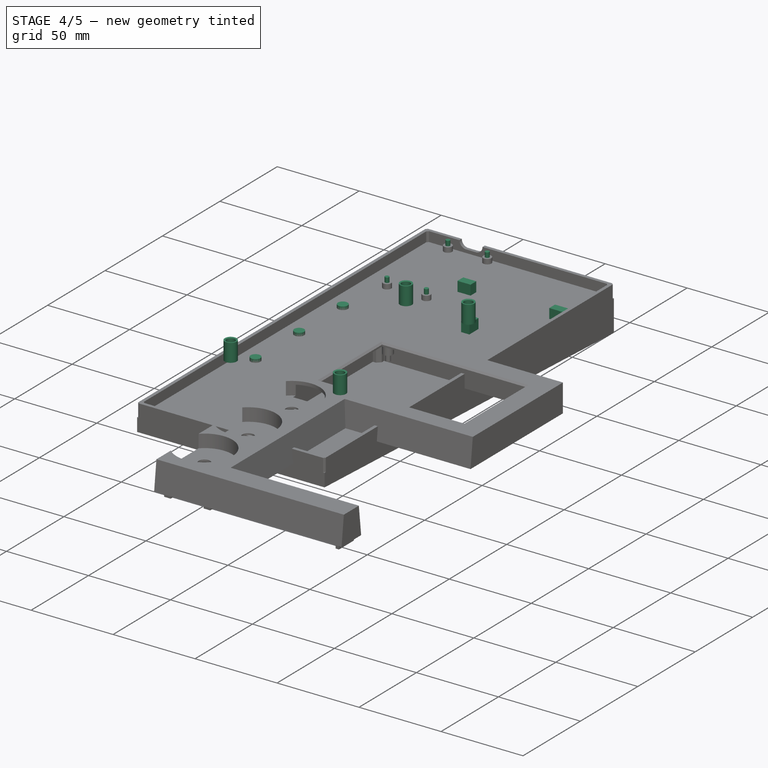
[diagram: stage 4 of 5 — iso view after this stage's code; geometry added in this stage tinted green]
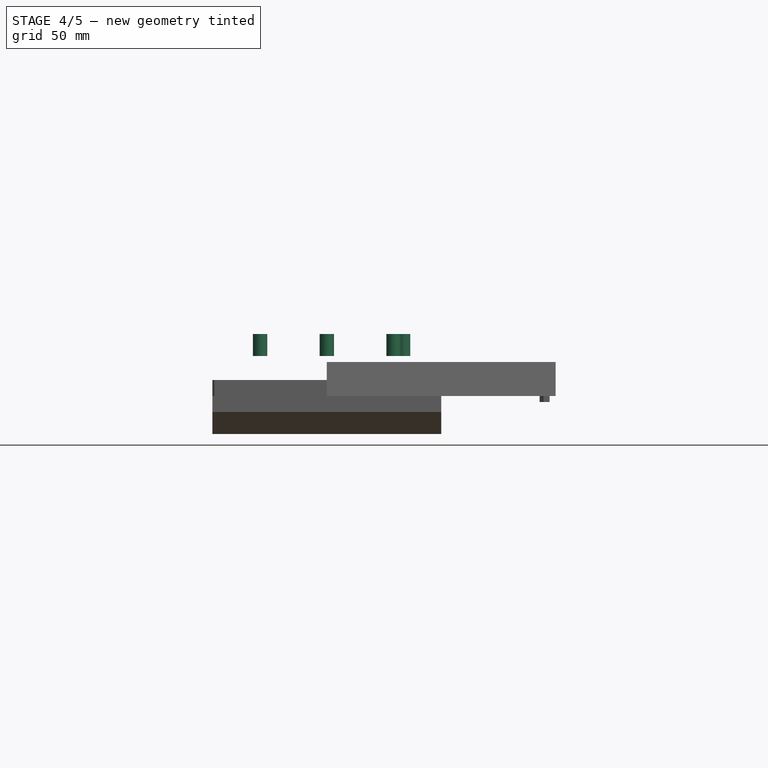
[diagram: stage 4 of 5 — front view after this stage's code; geometry added in this stage tinted green]
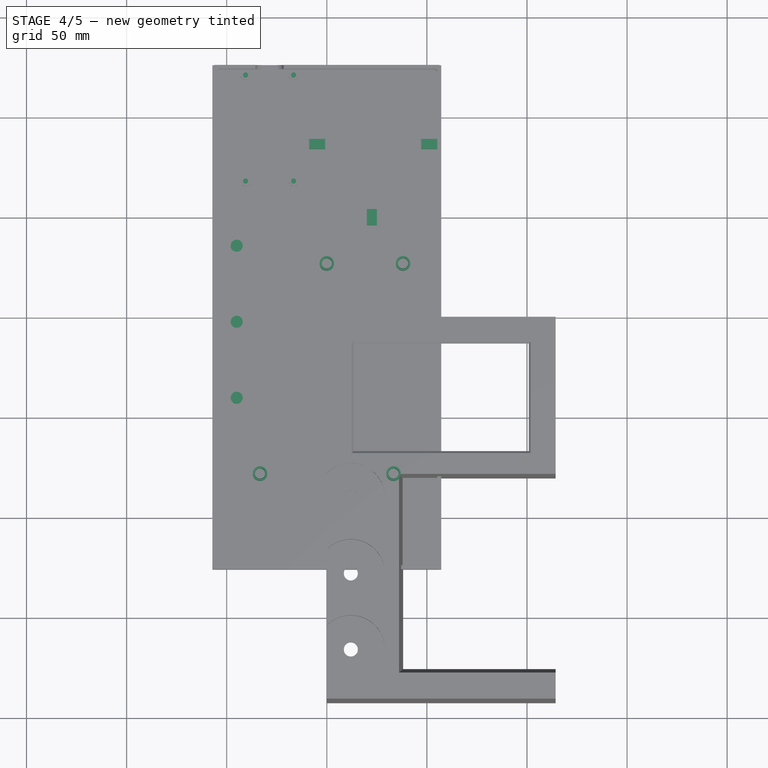
[diagram: stage 4 of 5 — top view after this stage's code; geometry added in this stage tinted green]
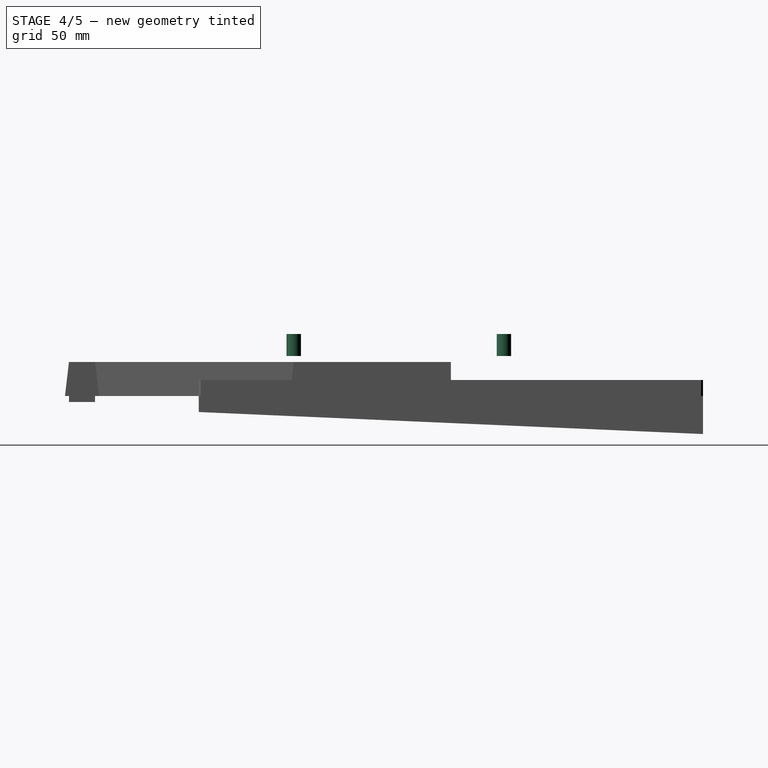
[diagram: stage 4 of 5 — right view after this stage's code; geometry added in this stage tinted green]
FEATURE [PartDesign::Body] Body005  label="LiPo_605028"
  Group = -> [Box]
  Origin = -> Origin005
  Placement = pos=(3,46,2) rot=(0,0,1;1.5708rad)
  Tip = -> Box
FEATURE [App::Link] Link006  label="FireBeetleMCU"
  LinkPlacement = pos=(28.575,121.564,-1.99047) rot=(0,0.021815,0.999762;3.14159rad)
  LinkedObject = -> <external FireBeetleMCU.FCStd>#Body
  Placement = pos=(28.575,121.564,-1.99047) rot=(0,0.021815,0.999762;3.14159rad)
  expr: .Placement.Base.x = <<var>>.vBoxWidth / 4
FEATURE [App::Link] Link007  label="EC11_Encoder"
  LinkPlacement = pos=(-45.15,-40.15,7.00001) rot=(0,0,1;0rad)
  LinkedObject = -> <external EC11.FCStd>#Body026003
  Placement = pos=(-45.15,-40.15,7.00001) rot=(0,0,1;0rad)
  expr: .Placement.Base.x = <<var>>.vScrubX
  expr: .Placement.Base.y = <<var>>.vScrubY
FEATURE [Part::FeaturePython] Array004  label="Encoders"  # Draft array (typed FeaturePython)
  Angle = 360
  ArrayType = 0
  Axis = (0,0,1)
  Base = -> Link007
  Center = (0,0,0)
  Count = 3
  ExpandArray = false
  Fuse = false
  IntervalAxis = (0,0,0)
  IntervalX = (38,0,0)
  IntervalY = (0,38,0)
  IntervalZ = (0,0,100)
  NumberCircles = 3
  NumberPolar = 5
  NumberX = 1
  NumberY = 3
  NumberZ = 1
  PlacementList = 3 placements: arithmetic series from (-45.15,-40.15,7.00001) step (0,38,0) to (-45.15,35.85,7.00001)
  RadialDistance = 50
  ScaleList = (3) [(1,1,1),(1,1,1),(1,1,1)]
  Symmetry = 1
  TangentialDistance = 25
FEATURE [Image::ImagePlane] ImagePlane  label="AnnoyingImage"
  Placement = pos=(0,86,32) rot=(0,0,1;0rad)
  XSize = 70.7
  YSize = 38.8
FEATURE [Sketcher::SketchObject] Sketch014
  FullyConstrained = true
  MapMode = 5
  Support = -> [XY_Plane007]
  sketch-geometry (2):
    g0: Circle CenterX=0 CenterY=0 CenterZ=0 NormalX=0 NormalY=0 NormalZ=1 AngleXU=0 Radius=2.6
    g1: Circle CenterX=0 CenterY=0 CenterZ=0 NormalX=0 NormalY=0 NormalZ=1 AngleXU=0 Radius=3.6
  constraints (4):
    c: Radius(g0) = 2.6
    c: Coincident(g1,g0)
    c: Radius(g1) = 3.6
    c: Coincident(g0,g-1)
FEATURE [PartDesign::Pad] Pad003
  Direction = (1,1,1)
  Length = 11
  Length2 = 100
  Profile = -> Sketch014
  Refine = true
  Type = 0
FEATURE [PartDesign::Chamfer] Chamfer002
  Angle = 45
  Base = -> Pad003 [Edge6]
  BaseFeature = -> Pad003
  ChamferType = 0
  FlipDirection = false
  Refine = true
  Size = 0.25
  Size2 = 1
  SupportTransform = false
FEATURE [PartDesign::Body] Body007  label="HeatSetInsert"
  Group = -> [Sketch014,Pad003,Chamfer002]
  Origin = -> Origin007
  Placement = pos=(0,0,5) rot=(0,0,1;0rad)
  Tip = -> Chamfer002
FEATURE [Sketcher::SketchObject] Sketch015  label="SketchForHeatInserts"
  FullyConstrained = true
  Placement = pos=(0,0,20) rot=(0,0,1;0rad)
  sketch-geometry (4):
    g0: GeomPoint X=-33.35 Y=-78.5 Z=0
    g1: GeomPoint X=33.35 Y=-78.5 Z=0
    g2: GeomPoint X=38.1 Y=26.5 Z=0
    g3: GeomPoint X=0 Y=26.5 Z=0
  constraints (8):
    c: PointOnObject(g3,g-2)
    c: DistanceY(g-1,g3) = 26.5
    c: Horizontal(g3,g2)
    c: DistanceX(g3,g2) = 38.1
    c: DistanceY(g0,g-1) = 78.5
    c: Horizontal(g0,g1)
    c: DistanceX(g0,g-1) = 33.35
    c: DistanceX(g-1,g1) = 33.35
FEATURE [Part::FeaturePython] PointArray001  label="HeatSetInserts"  # Draft array (typed FeaturePython)
  Base = -> Body007
  Count = 0
  PointObject = -> Sketch015
FEATURE [PartDesign::Plane] DatumPlane003
  Length = 148.24
  MapMode = 5
  Placement = pos=(0,0,2) rot=(0,0,1;0rad)
  ResizeMode = 0
  Width = 285.89
FEATURE [Sketcher::SketchObject] Sketch017
  FullyConstrained = true
  MapMode = 5
  Placement = pos=(0,0,2) rot=(0,0,1;0rad)
  Support = -> [DatumPlane003]
  sketch-geometry (7):
    g0: Circle CenterX=-40.575 CenterY=121 CenterZ=0 NormalX=0 NormalY=0 NormalZ=1 AngleXU=0 Radius=2.5
    g1: Circle CenterX=-40.575 CenterY=68 CenterZ=0 NormalX=0 NormalY=0 NormalZ=1 AngleXU=0 Radius=2.5
    g2: Circle CenterX=-16.575 CenterY=68 CenterZ=0 NormalX=0 NormalY=0 NormalZ=1 AngleXU=0 Radius=2.5
    g3: Circle CenterX=-16.575 CenterY=121 CenterZ=0 NormalX=0 NormalY=0 NormalZ=1 AngleXU=0 Radius=2.5
    g4: GeomPoint X=-28.575 Y=68 Z=0
    g5: GeomPoint X=-57.15 Y=0 Z=0
    g6: GeomPoint X=-28.575 Y=0 Z=0
  constraints (16):
    c: Radius(g0) = 2.5  'Radius'
    c: Equal(g0,g3)
    c: Equal(g2,g0)
    c: Equal(g0,g1)
    c: DistanceX(g1,g2) = 24  'HorizontalCL'
    c: DistanceY(g1,g0) = 53  'VerticalCL'
    c: Horizontal(g1,g2)
    c: Horizontal(g0,g3)
    c: Vertical(g0,g1)
    c: Vertical(g3,g2)
    c: Symmetric(g1,g2,g4)
    c: Horizontal(g5,g-1)
    c: DistanceX(g5,g-1) = 57.15
    c: Symmetric(g5,g-1,g6)
    c: Vertical(g4,g6)
    c: DistanceY(g-1,g2) = 68  'VerticalOD'
FEATURE [PartDesign::Pad] Pad005
  BaseFeature = -> Chamfer004
  Direction = (1,1,1)
  Length = 3
  Length2 = 100
  Profile = -> Sketch017
  Refine = true
  Type = 0
FEATURE [Sketcher::SketchObject] Sketch018
  ExternalGeometry = -> [Pad005]
  FullyConstrained = true
  MapMode = 5
  Placement = pos=(0,0,2) rot=(0,0,1;0rad)
  Support = -> [DatumPlane003]
  sketch-geometry (4):
    g0: Circle CenterX=-40.575 CenterY=121 CenterZ=0 NormalX=0 NormalY=0 NormalZ=1 AngleXU=0 Radius=1.25
    g1: Circle CenterX=-16.575 CenterY=121 CenterZ=0 NormalX=0 NormalY=0 NormalZ=1 AngleXU=0 Radius=1.25
    g2: Circle CenterX=-40.575 CenterY=68 CenterZ=0 NormalX=0 NormalY=0 NormalZ=1 AngleXU=0 Radius=1.25
    g3: Circle CenterX=-16.575 CenterY=68 CenterZ=0 NormalX=0 NormalY=0 NormalZ=1 AngleXU=0 Radius=1.25
  constraints (8):
    c: Radius(g0) = 1.25  'Radius'
    c: Equal(g0,g1)
    c: Equal(g0,g3)
    c: Equal(g0,g2)
    c: Coincident(g-3,g0)
    c: Coincident(g-4,g1)
    c: Coincident(g-5,g2)
    c: Coincident(g3,g-6)
FEATURE [PartDesign::Pad] Pad006
  BaseFeature = -> Pad005
  Direction = (1,1,1)
  Length = 6
  Length2 = 100
  Profile = -> Sketch018
  Refine = true
  Type = 0
FEATURE [PartDesign::Plane] DatumPlane004
  Length = 60
  MapMode = 5
  Placement = pos=(0,125.975,0) rot=(0,0.707107,0.707107;3.14159rad)
  ResizeMode = 0
  Width = 60
FEATURE [Sketcher::SketchObject] Sketch019
  FullyConstrained = true
  MapMode = 5
  Placement = pos=(0,125.975,0) rot=(0,0.707107,0.707107;3.14159rad)
  Support = -> [DatumPlane004]
  sketch-geometry (12):
    g0: GeomPoint X=57.15 Y=0 Z=0
    g1: LineSegment StartX=0 StartY=0 StartZ=0 EndX=28.575 EndY=0 EndZ=0
    g2: LineSegment StartX=28.575 StartY=0 StartZ=0 EndX=57.15 EndY=0 EndZ=0
    g3: LineSegment StartX=21.575 StartY=16 StartZ=0 EndX=35.575 EndY=16 EndZ=0
    g4: LineSegment StartX=35.575 StartY=16 StartZ=0 EndX=35.575 EndY=8 EndZ=0
    g5: LineSegment StartX=31.575 StartY=4 StartZ=0 EndX=25.575 EndY=4 EndZ=0
    g6: LineSegment StartX=21.575 StartY=8 StartZ=0 EndX=21.575 EndY=16 EndZ=0
    g7: ArcOfCircle CenterX=25.575 CenterY=8 CenterZ=0 NormalX=0 NormalY=0 NormalZ=1 AngleXU=0 Radius=4 StartAngle=3.14159 EndAngle=4.71239
    g8: ArcOfCircle CenterX=31.575 CenterY=8 CenterZ=0 NormalX=0 NormalY=0 NormalZ=1 AngleXU=0 Radius=4 StartAngle=4.71239 EndAngle=6.28319
    g9: GeomPoint X=28.575 Y=8 Z=0
    g10: LineSegment StartX=25.575 StartY=8 StartZ=0 EndX=28.575 EndY=8 EndZ=0
    g11: LineSegment StartX=31.575 StartY=8 StartZ=0 EndX=28.575 EndY=8 EndZ=0
  constraints (29):
    c: PointOnObject(g0,g-1)
    c: DistanceX(g-1,g0) = 57.15
    c: Coincident(g-1,g1)
    c: Coincident(g2,g0)
    c: Equal(g1,g2)
    c: Horizontal(g1,g1)
    c: Coincident(g1,g2)
    c: Coincident(g3,g4)
    c: Coincident(g6,g3)
    c: Horizontal(g3)
    c: Horizontal(g5)
    c: Vertical(g4)
    c: Vertical(g6)
    c: Tangent(g6,g7) = 1.5708
    c: Tangent(g5,g7) = 1.5708
    c: Tangent(g5,g8) = 1.5708
    c: Tangent(g4,g8) = 1.5708
    c: Coincident(g10,g7)
    c: Coincident(g10,g9)
    c: Coincident(g11,g8)
    c: Coincident(g11,g10)
    c: Horizontal(g9,g7)
    c: Horizontal(g9,g8)
    c: Vertical(g1,g9)
    c: Equal(g10,g11)
    c: DistanceX(g3,g3) = 14  'Width'
    c: Radius(g7) = 4  'Radius'
    c: DistanceY(g-1,g5) = 4  'VertOffset'
    c: DistanceY(g6,g6) = 8
FEATURE [PartDesign::Pocket] Pocket005
  BaseFeature = -> Pad006
  Length = 5
  Length2 = 100
  Profile = -> Sketch019
  Refine = true
  Type = 0
FEATURE [Sketcher::SketchObject] Sketch020
  FullyConstrained = true
  MapMode = 5
  Placement = pos=(0,0,2) rot=(0,0,1;0rad)
  Support = -> [DatumPlane003]
  sketch-geometry (3):
    g0: Circle CenterX=-45 CenterY=35.75 CenterZ=0 NormalX=0 NormalY=0 NormalZ=1 AngleXU=0 Radius=3
    g1: Circle CenterX=-45 CenterY=-2.25 CenterZ=0 NormalX=0 NormalY=0 NormalZ=1 AngleXU=0 Radius=3
    g2: Circle CenterX=-45 CenterY=-40.25 CenterZ=0 NormalX=0 NormalY=0 NormalZ=1 AngleXU=0 Radius=3
  constraints (9):
    c: Radius(g0) = 3
    c: Equal(g0,g1)
    c: Equal(g0,g2)
    c: Vertical(g0,g1)
    c: Vertical(g0,g2)
    c: DistanceY(g1,g0) = 38
    c: DistanceY(g2,g1) = 38
    c: DistanceX(g0) = -45
    c: DistanceY(g0) = 35.75
FEATURE [PartDesign::Pad] Pad007
  BaseFeature = -> Pocket005
  Direction = (1,1,1)
  Length = 2
  Length2 = 100
  Profile = -> Sketch020
  Refine = true
  Type = 0
FEATURE [Sketcher::SketchObject] Sketch021
  FullyConstrained = true
  MapMode = 5
  Placement = pos=(0,0,2) rot=(0,0,1;0rad)
  Support = -> [DatumPlane003]
  sketch-geometry (12):
    g0: LineSegment StartX=47.15 StartY=89 StartZ=0 EndX=55.15 EndY=89 EndZ=0
    g1: LineSegment StartX=55.15 StartY=89 StartZ=0 EndX=55.15 EndY=84 EndZ=0
    g2: LineSegment StartX=55.15 StartY=84 StartZ=0 EndX=47.15 EndY=84 EndZ=0
    g3: LineSegment StartX=47.15 StartY=84 StartZ=0 EndX=47.15 EndY=89 EndZ=0
    g4: LineSegment StartX=-8.85 StartY=89 StartZ=0 EndX=-0.85 EndY=89 EndZ=0
    g5: LineSegment StartX=-0.85 StartY=89 StartZ=0 EndX=-0.85 EndY=84 EndZ=0
    g6: LineSegment StartX=-0.85 StartY=84 StartZ=0 EndX=-8.85 EndY=84 EndZ=0
    g7: LineSegment StartX=-8.85 StartY=84 StartZ=0 EndX=-8.85 EndY=89 EndZ=0
    g8: LineSegment StartX=20 StartY=54 StartZ=0 EndX=25 EndY=54 EndZ=0
    g9: LineSegment StartX=25 StartY=54 StartZ=0 EndX=25 EndY=46 EndZ=0
    g10: LineSegment StartX=25 StartY=46 StartZ=0 EndX=20 EndY=46 EndZ=0
    g11: LineSegment StartX=20 StartY=46 StartZ=0 EndX=20 EndY=54 EndZ=0
  constraints (36):
    c: Coincident(g0,g1)
    c: Coincident(g1,g2)
    c: Coincident(g2,g3)
    c: Coincident(g3,g0)
    c: Horizontal(g0)
    c: Horizontal(g2)
    c: Vertical(g1)
    c: Vertical(g3)
    c: Coincident(g4,g5)
    c: Coincident(g5,g6)
    c: Coincident(g6,g7)
    c: Coincident(g7,g4)
    c: Horizontal(g4)
    c: Horizontal(g6)
    c: Vertical(g5)
    c: Vertical(g7)
    c: Coincident(g8,g9)
    c: Coincident(g9,g10)
    c: Coincident(g10,g11)
    c: Coincident(g11,g8)
    c: Horizontal(g8)
    c: Horizontal(g10)
    c: Vertical(g9)
    c: Vertical(g11)
    c: DistanceY(g7,g7) = 5
    c: Equal(g7,g1)
    c: Equal(g7,g10)
    c: DistanceX(g6,g6) = 8
    c: Equal(g4,g0)
    c: Equal(g4,g11)
    c: DistanceX(g-1,g1) = 55.15
    c: DistanceX(g5,g2) = 48
    c: Horizontal(g5,g2)
    c: DistanceY(g-1,g5) = 84
    c: DistanceX(g10) = 20
    c: DistanceY(g10) = 46
FEATURE [PartDesign::Pad] Pad008
  BaseFeature = -> Pad007
  Direction = (1,1,1)
  Length = 6
  Length2 = 100
  Profile = -> Sketch021
  Refine = true
  Type = 0
FEATURE [Sketcher::SketchObject] Sketch008
  AttachmentOffset = pos=(0,0,4) rot=(0,0,1;0rad)
  FullyConstrained = true
  MapMode = 5
  Placement = pos=(0,0,-4) rot=(1,0,0;3.14159rad)
  Support = -> [DatumPlane002]
  sketch-geometry (4):
    g0: LineSegment StartX=-30 StartY=-20 StartZ=0 EndX=-10 EndY=-20 EndZ=0
    g1: LineSegment StartX=-10 StartY=-20 StartZ=0 EndX=-10 EndY=-35 EndZ=0
    g2: LineSegment StartX=-10 StartY=-35 StartZ=0 EndX=-30 EndY=-35 EndZ=0
    g3: LineSegment StartX=-30 StartY=-35 StartZ=0 EndX=-30 EndY=-20 EndZ=0
  constraints (12):
    c: Coincident(g0,g1)
    c: Coincident(g1,g2)
    c: Coincident(g2,g3)
    c: Coincident(g3,g0)
    c: Horizontal(g0)
    c: Horizontal(g2)
    c: Vertical(g1)
    c: Vertical(g3)
    c: DistanceY(g3,g3) = 15
    c: DistanceX(g2,g2) = 20
    c: DistanceX(g1,g-1) = 10
    c: DistanceY(g0,g-1) = 20
FEATURE [PartDesign::Pad] Pad006
  BaseFeature = -> Pad005
  Direction = (1,1,1)
  Length = 3
  Length2 = 100
  Profile = -> Sketch008
  Refine = true
  Reversed = true
  Type = 0
FEATURE [PartDesign::Body] Body007  label="LCD_128x64"
  Group = -> [Sketch003,Pad003,DatumPlane,Sketch,Pad,DatumPlane001,Sketch004,Pocket,Sketch005,Pocket001,DatumPlane002,Sketch006,Pad004,Sketch007,Pad005,Sketch008,Pad006]
  Origin = -> Origin007
  Tip = -> Pad006
---- part MX_Switch_1u.FCStd = doc fcstd_8dc0bdc428a5 ----
FCSTD DOCUMENT  (FreeCAD 0.19R24276 (Git))
Label: MX_Switch_1u
License: All rights reserved
LicenseURL: http://en.wikipedia.org/wiki/All_rights_reserved
objects: Sketcher::SketchObject×9, PartDesign::Pad×3, PartDesign::Plane×3, PartDesign::AdditiveLoft×3, PartDesign::Body×1
note: 25 computed .brp shape members not serialized (recipe doc carries the construction recipe); baked Part::Feature solids carry a one-line shape summary decoded from their .brp

FEATURE [Sketcher::SketchObject] Sketch003
  FullyConstrained = true
  MapMode = 5
  Support = -> [XY_Plane002]
  sketch-geometry (4):
    g0: LineSegment StartX=-7.8 StartY=7.8 StartZ=0 EndX=7.8 EndY=7.8 EndZ=0
    g1: LineSegment StartX=7.8 StartY=7.8 StartZ=0 EndX=7.8 EndY=-7.8 EndZ=0
    g2: LineSegment StartX=7.8 StartY=-7.8 StartZ=0 EndX=-7.8 EndY=-7.8 EndZ=0
    g3: LineSegment StartX=-7.8 StartY=-7.8 StartZ=0 EndX=-7.8 EndY=7.8 EndZ=0
  constraints (11):
    c: Coincident(g0,g1)
    c: Coincident(g1,g2)
    c: Coincident(g2,g3)
    c: Coincident(g3,g0)
    c: Horizontal(g0)
    c: Horizontal(g2)
    c: Vertical(g1)
    c: Vertical(g3)
    c: DistanceX(g0,g0) = 15.6
    c: Equal(g0,g3)
    c: Symmetric(g0,g1,g-1)
FEATURE [PartDesign::Pad] Pad002
  Direction = (1,1,1)
  Length = 1
  Length2 = 100
  Profile = -> Sketch003
  Refine = true
  Type = 0
FEATURE [Sketcher::SketchObject] Sketch004
  FullyConstrained = true
  MapMode = 5
  Support = -> [XY_Plane002]
  sketch-geometry (4):
    g0: LineSegment StartX=-7 StartY=7 StartZ=0 EndX=7 EndY=7 EndZ=0
    g1: LineSegment StartX=7 StartY=7 StartZ=0 EndX=7 EndY=-7 EndZ=0
    g2: LineSegment StartX=7 StartY=-7 StartZ=0 EndX=-7 EndY=-7 EndZ=0
    g3: LineSegment StartX=-7 StartY=-7 StartZ=0 EndX=-7 EndY=7 EndZ=0
  constraints (11):
    c: Coincident(g0,g1)
    c: Coincident(g1,g2)
    c: Coincident(g2,g3)
    c: Coincident(g3,g0)
    c: Horizontal(g0)
    c: Horizontal(g2)
    c: Vertical(g1)
    c: Vertical(g3)
    c: Symmetric(g0,g1,g-1)
    c: Equal(g0,g3)
    c: DistanceX(g0,g0) = 14
FEATURE [PartDesign::Pad] Pad003
  BaseFeature = -> Pad002
  Direction = (1,1,1)
  Length = 2.5
  Length2 = 100
  Profile = -> Sketch004
  Refine = true
  Reversed = true
  Type = 0
FEATURE [PartDesign::Plane] DatumPlane001
  Length = 60
  MapMode = 5
  Placement = pos=(0,0,-2.5) rot=(1,0,0;3.14159rad)
  ResizeMode = 0
  Support = -> [Pad003]
  Width = 60
FEATURE [Sketcher::SketchObject] Sketch005
  AttachmentOffset = pos=(0,0,2.5) rot=(0,0,1;0rad)
  FullyConstrained = true
  MapMode = 5
  Placement = pos=(0,0,-5) rot=(1,0,0;3.14159rad)
  Support = -> [DatumPlane001]
  sketch-geometry (4):
    g0: LineSegment StartX=-5 StartY=5 StartZ=0 EndX=5 EndY=5 EndZ=0
    g1: LineSegment StartX=5 StartY=5 StartZ=0 EndX=5 EndY=-5 EndZ=0
    g2: LineSegment StartX=5 StartY=-5 StartZ=0 EndX=-5 EndY=-5 EndZ=0
    g3: LineSegment StartX=-5 StartY=-5 StartZ=0 EndX=-5 EndY=5 EndZ=0
  constraints (11):
    c: Coincident(g0,g1)
    c: Coincident(g1,g2)
    c: Coincident(g2,g3)
    c: Coincident(g3,g0)
    c: Horizontal(g0)
    c: Horizontal(g2)
    c: Vertical(g1)
    c: Vertical(g3)
    c: DistanceX(g0,g0) = 10
    c: Equal(g0,g3)
    c: Symmetric(g0,g1,g-1)
FEATURE [Sketcher::SketchObject] Sketch006
  FullyConstrained = true
  MapMode = 5
  Placement = pos=(0,0,-2.5) rot=(1,0,0;3.14159rad)
  Support = -> [DatumPlane001]
  sketch-geometry (4):
    g0: LineSegment StartX=-7 StartY=7 StartZ=0 EndX=7 EndY=7 EndZ=0
    g1: LineSegment StartX=7 StartY=7 StartZ=0 EndX=7 EndY=-7 EndZ=0
    g2: LineSegment StartX=7 StartY=-7 StartZ=0 EndX=-7 EndY=-7 EndZ=0
    g3: LineSegment StartX=-7 StartY=-7 StartZ=0 EndX=-7 EndY=7 EndZ=0
  constraints (11):
    c: Coincident(g0,g1)
    c: Coincident(g1,g2)
    c: Coincident(g2,g3)
    c: Coincident(g3,g0)
    c: Horizontal(g0)
    c: Horizontal(g2)
    c: Vertical(g1)
    c: Vertical(g3)
    c: Equal(g0,g3)
    c: DistanceX(g0,g0) = 14
    c: Symmetric(g0,g1,g-1)
FEATURE [PartDesign::AdditiveLoft] AdditiveLoft
  BaseFeature = -> Pad003
  Closed = false
  Profile = -> Sketch005
  Refine = true
  Ruled = false
  Sections = -> [Sketch006]
FEATURE [PartDesign::Plane] DatumPlane002
  Length = 60
  MapMode = 5
  Placement = pos=(0,0,-5) rot=(1,0,0;3.14159rad)
  ResizeMode = 0
  Support = -> [AdditiveLoft]
  Width = 60
FEATURE [Sketcher::SketchObject] Sketch007
  FullyConstrained = true
  MapMode = 5
  Placement = pos=(0,0,-5) rot=(1,0,0;3.14159rad)
  Support = -> [DatumPlane002]
  sketch-geometry (1):
    g0: Circle CenterX=0 CenterY=0 CenterZ=0 NormalX=0 NormalY=0 NormalZ=1 AngleXU=0 Radius=4
  constraints (2):
    c: Coincident(g0,g-1)
    c: Radius(g0) = 4
FEATURE [PartDesign::Pad] Pad004
  BaseFeature = -> AdditiveLoft
  Direction = (1,1,1)
  Length = 3.3
  Length2 = 100
  Profile = -> Sketch007
  Refine = true
  Type = 0
FEATURE [PartDesign::Plane] DatumPlane003
  Length = 60
  MapMode = 5
  Placement = pos=(0,0,1) rot=(0,0,1;0rad)
  ResizeMode = 0
  Support = -> [Pad003]
  Width = 60
FEATURE [Sketcher::SketchObject] Sketch008
  FullyConstrained = true
  MapMode = 5
  Placement = pos=(0,0,1) rot=(0,0,1;0rad)
  Support = -> [DatumPlane003]
  sketch-geometry (4):
    g0: LineSegment StartX=-7 StartY=7 StartZ=0 EndX=7 EndY=7 EndZ=0
    g1: LineSegment StartX=7 StartY=7 StartZ=0 EndX=7 EndY=-7 EndZ=0
    g2: LineSegment StartX=7 StartY=-7 StartZ=0 EndX=-7 EndY=-7 EndZ=0
    g3: LineSegment StartX=-7 StartY=-7 StartZ=0 EndX=-7 EndY=7 EndZ=0
  constraints (11):
    c: Coincident(g0,g1)
    c: Coincident(g1,g2)
    c: Coincident(g2,g3)
    c: Coincident(g3,g0)
    c: Horizontal(g0)
    c: Horizontal(g2)
    c: Vertical(g1)
    c: Vertical(g3)
    c: Symmetric(g0,g1,g-1)
    c: Equal(g0,g3)
    c: DistanceX(g0,g0) = 14
FEATURE [Sketcher::SketchObject] Sketch009
  AttachmentOffset = pos=(0,0,5.6) rot=(0,0,1;0rad)
  FullyConstrained = true
  MapMode = 5
  Placement = pos=(0,0,6.6) rot=(0,0,1;0rad)
  Support = -> [DatumPlane003]
  expr: .AttachmentOffset.Base.z = 11.6 - 5 - 1
  sketch-geometry (4):
    g0: LineSegment StartX=-4 StartY=4 StartZ=0 EndX=4 EndY=4 EndZ=0
    g1: LineSegment StartX=4 StartY=4 StartZ=0 EndX=4 EndY=-4 EndZ=0
    g2: LineSegment StartX=4 StartY=-4 StartZ=0 EndX=-4 EndY=-4 EndZ=0
    g3: LineSegment StartX=-4 StartY=-4 StartZ=0 EndX=-4 EndY=4 EndZ=0
  constraints (11):
    c: Coincident(g0,g1)
    c: Coincident(g1,g2)
    c: Coincident(g2,g3)
    c: Coincident(g3,g0)
    c: Horizontal(g0)
    c: Horizontal(g2)
    c: Vertical(g1)
    c: Vertical(g3)
    c: Equal(g0,g3)
    c: Symmetric(g0,g1,g-1)
    c: DistanceX(g0,g0) = 8
FEATURE [PartDesign::AdditiveLoft] AdditiveLoft001
  BaseFeature = -> Pad004
  Closed = false
  Profile = -> Sketch008
  Refine = true
  Ruled = false
  Sections = -> [Sketch009]
FEATURE [Sketcher::SketchObject] Sketch010
  AttachmentOffset = pos=(0,0,16) rot=(0,0,1;0rad)
  FullyConstrained = true
  MapMode = 5
  Placement = pos=(0,0,17) rot=(0,0,1;0rad)
  Support = -> [DatumPlane003]
  sketch-geometry (4):
    g0: LineSegment StartX=-6.185 StartY=6.185 StartZ=0 EndX=6.185 EndY=6.185 EndZ=0
    g1: LineSegment StartX=6.185 StartY=6.185 StartZ=0 EndX=6.185 EndY=-6.185 EndZ=0
    g2: LineSegment StartX=6.185 StartY=-6.185 StartZ=0 EndX=-6.185 EndY=-6.185 EndZ=0
    g3: LineSegment StartX=-6.185 StartY=-6.185 StartZ=0 EndX=-6.185 EndY=6.185 EndZ=0
  constraints (11):
    c: Coincident(g0,g1)
    c: Coincident(g1,g2)
    c: Coincident(g2,g3)
    c: Coincident(g3,g0)
    c: Horizontal(g0)
    c: Horizontal(g2)
    c: Vertical(g1)
    c: Vertical(g3)
    c: DistanceX(g0,g0) = 12.37
    c: Equal(g0,g3)
    c: Symmetric(g0,g1,g-1)
FEATURE [Sketcher::SketchObject] Sketch011
  AttachmentOffset = pos=(0,0,4.61) rot=(0,0,1;0rad)
  FullyConstrained = true
  MapMode = 5
  Placement = pos=(0,0,5.61) rot=(0,0,1;0rad)
  Support = -> [DatumPlane003]
  expr: .AttachmentOffset.Base.z = 16 - 9.390000000000001 - 2
  sketch-geometry (4):
    g0: LineSegment StartX=-9.05 StartY=9.05 StartZ=0 EndX=9.05 EndY=9.05 EndZ=0
    g1: LineSegment StartX=9.05 StartY=9.05 StartZ=0 EndX=9.05 EndY=-9.05 EndZ=0
    g2: LineSegment StartX=9.05 StartY=-9.05 StartZ=0 EndX=-9.05 EndY=-9.05 EndZ=0
    g3: LineSegment StartX=-9.05 StartY=-9.05 StartZ=0 EndX=-9.05 EndY=9.05 EndZ=0
  constraints (11):
    c: Coincident(g0,g1)
    c: Coincident(g1,g2)
    c: Coincident(g2,g3)
    c: Coincident(g3,g0)
    c: Horizontal(g0)
    c: Horizontal(g2)
    c: Vertical(g1)
    c: Vertical(g3)
    c: DistanceX(g0,g0) = 18.1
    c: Equal(g0,g3)
    c: Symmetric(g0,g1,g-1)
FEATURE [PartDesign::AdditiveLoft] AdditiveLoft002
  BaseFeature = -> AdditiveLoft001
  Closed = false
  Profile = -> Sketch010
  Refine = true
  Ruled = false
  Sections = -> [Sketch011]
FEATURE [PartDesign::Body] Body002  label="MXSwitch"
  Group = -> [Sketch003,Pad002,Sketch004,Pad003,DatumPlane001,Sketch005,Sketch006,AdditiveLoft,DatumPlane002,Sketch007,Pad004,DatumPlane003,Sketch008,Sketch009,AdditiveLoft001,Sketch010,Sketch011,AdditiveLoft002]
  Origin = -> Origin002
---- part MX_Switch_2u.FCStd = doc fcstd_61dca67049f6 ----
FCSTD DOCUMENT  (FreeCAD 0.19R24276 (Git))
Label: MX_Switch_2u
License: All rights reserved
LicenseURL: http://en.wikipedia.org/wiki/All_rights_reserved
objects: Sketcher::SketchObject×9, PartDesign::Pad×3, PartDesign::Plane×3, PartDesign::AdditiveLoft×3, PartDesign::Body×1
note: 25 computed .brp shape members not serialized (recipe doc carries the construction recipe); baked Part::Feature solids carry a one-line shape summary decoded from their .brp

FEATURE [Sketcher::SketchObject] Sketch003
  FullyConstrained = true
  MapMode = 5
  Support = -> [XY_Plane002]
  sketch-geometry (4):
    g0: LineSegment StartX=-7.8 StartY=7.8 StartZ=0 EndX=7.8 EndY=7.8 EndZ=0
    g1: LineSegment StartX=7.8 StartY=7.8 StartZ=0 EndX=7.8 EndY=-7.8 EndZ=0
    g2: LineSegment StartX=7.8 StartY=-7.8 StartZ=0 EndX=-7.8 EndY=-7.8 EndZ=0
    g3: LineSegment StartX=-7.8 StartY=-7.8 StartZ=0 EndX=-7.8 EndY=7.8 EndZ=0
  constraints (11):
    c: Coincident(g0,g1)
    c: Coincident(g1,g2)
    c: Coincident(g2,g3)
    c: Coincident(g3,g0)
    c: Horizontal(g0)
    c: Horizontal(g2)
    c: Vertical(g1)
    c: Vertical(g3)
    c: DistanceX(g0,g0) = 15.6
    c: Equal(g0,g3)
    c: Symmetric(g0,g1,g-1)
FEATURE [PartDesign::Pad] Pad002
  Direction = (1,1,1)
  Length = 1
  Length2 = 100
  Profile = -> Sketch003
  Refine = true
  Type = 0
FEATURE [Sketcher::SketchObject] Sketch004
  FullyConstrained = true
  MapMode = 5
  Support = -> [XY_Plane002]
  sketch-geometry (4):
    g0: LineSegment StartX=-7 StartY=7 StartZ=0 EndX=7 EndY=7 EndZ=0
    g1: LineSegment StartX=7 StartY=7 StartZ=0 EndX=7 EndY=-7 EndZ=0
    g2: LineSegment StartX=7 StartY=-7 StartZ=0 EndX=-7 EndY=-7 EndZ=0
    g3: LineSegment StartX=-7 StartY=-7 StartZ=0 EndX=-7 EndY=7 EndZ=0
  constraints (11):
    c: Coincident(g0,g1)
    c: Coincident(g1,g2)
    c: Coincident(g2,g3)
    c: Coincident(g3,g0)
    c: Horizontal(g0)
    c: Horizontal(g2)
    c: Vertical(g1)
    c: Vertical(g3)
    c: Symmetric(g0,g1,g-1)
    c: Equal(g0,g3)
    c: DistanceX(g0,g0) = 14
FEATURE [PartDesign::Pad] Pad003
  BaseFeature = -> Pad002
  Direction = (1,1,1)
  Length = 2.5
  Length2 = 100
  Profile = -> Sketch004
  Refine = true
  Reversed = true
  Type = 0
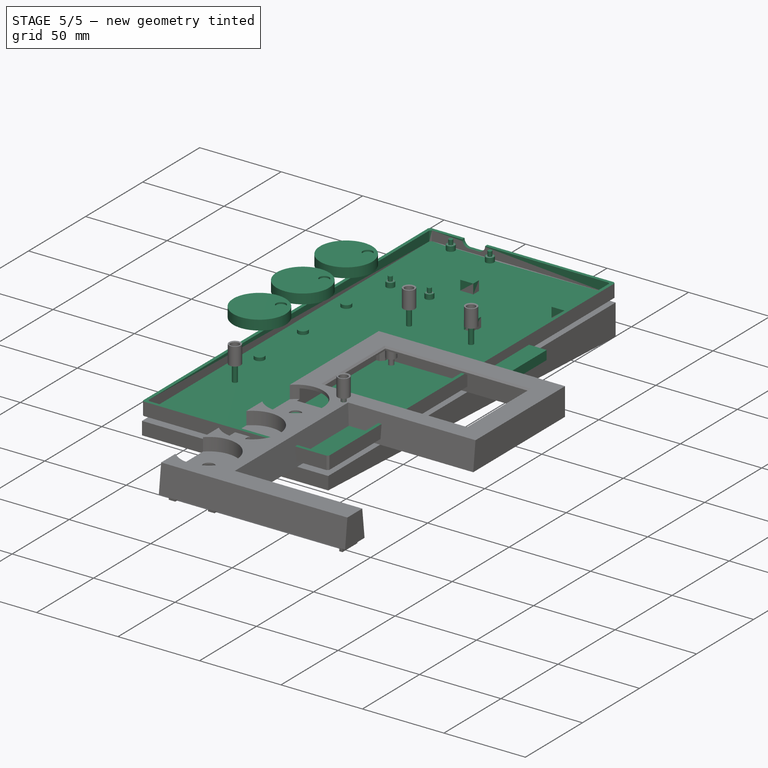
[diagram: stage 5 of 5 — iso view after this stage's code; geometry added in this stage tinted green]
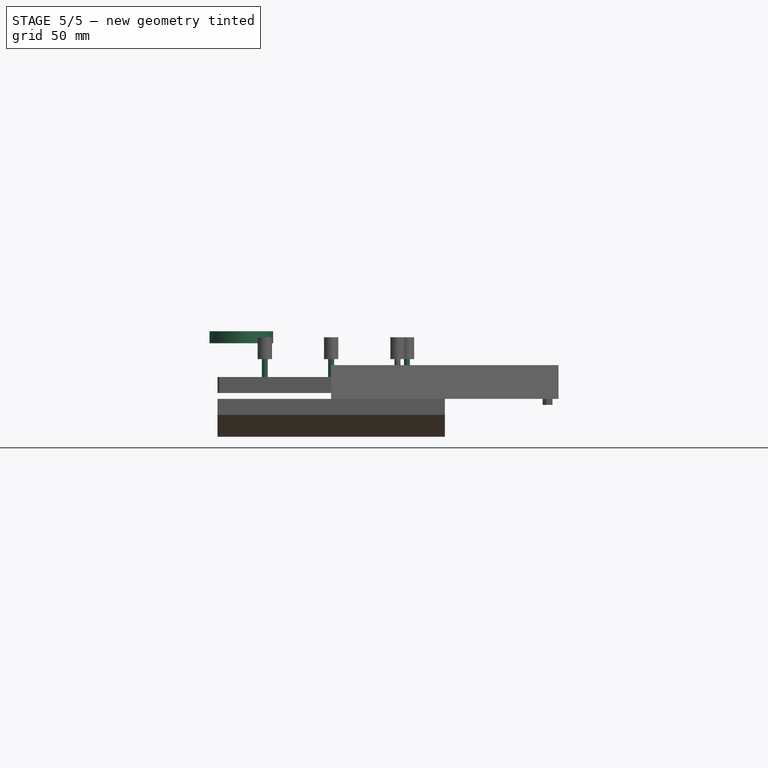
[diagram: stage 5 of 5 — front view after this stage's code; geometry added in this stage tinted green]
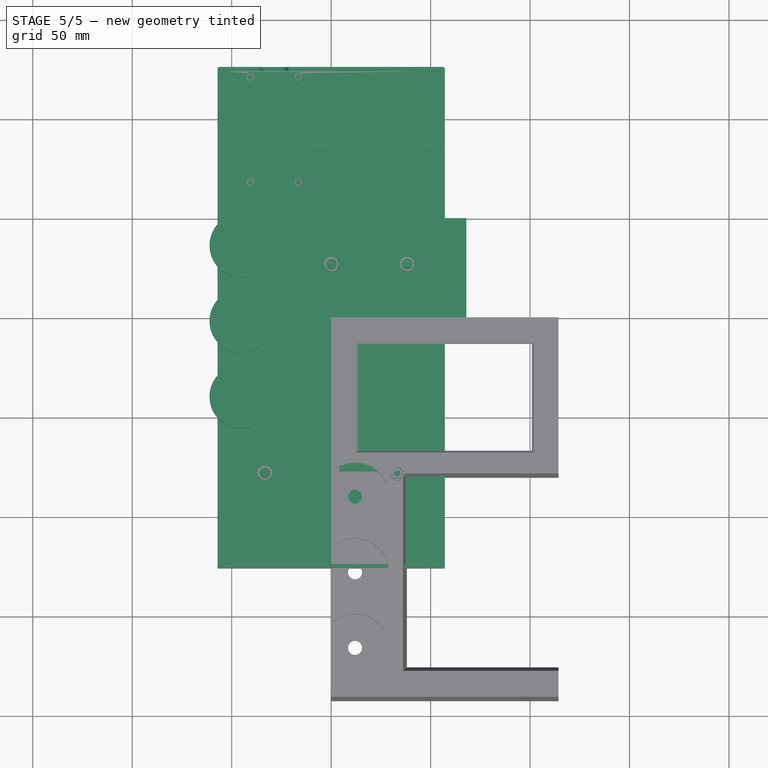
[diagram: stage 5 of 5 — top view after this stage's code; geometry added in this stage tinted green]
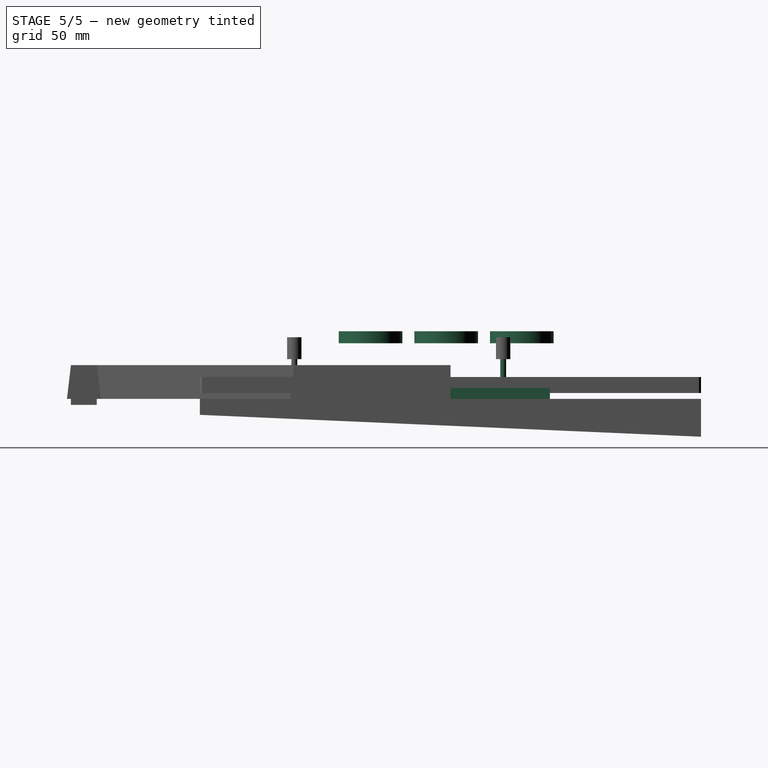
[diagram: stage 5 of 5 — right view after this stage's code; geometry added in this stage tinted green]
FEATURE [Spreadsheet::Sheet] Spreadsheet  label="var"
  cells = A2=BoxWidth; B2(vBoxWidth)=114.3; A3=BoxDepth; B3(vBoxDepth)==C3 + D3 + E3; C3==9 * 19.05; D3==53.7 + 2; E3==B10 * 2; A4=BoxHeight; B4(vBoxHeight)=15; A5=WallThickness; B5(vWallThk)=2; A7=TopShellHeight; B7(vTopHeight)=17; A8=BottomShellHeight; B8(vBotHeight)=8; A10=LCDFasciaPadding; B10(vLCDPad)==(B2 - 87.5 - 2) / 2; A12=LCDBezelWidth; B12(vLCDBezWidth)=87.5; A13=LCDBezelHeight; B13(vLCDBezHeight)=53.7; A15=ScrubberX; B15(vScrubX)==0 - C15 + D15; C15==B2 / 2; D15=12; A16=ScrubberY; B16(vScrubY)==0 - (C16 - D16 + E16); C16==80.5 + 95.25 / 2; D16==B3 / 2; E16=38; A18=LCDHolderX; B18(vLCDHolderX)=13.125; A19=LCDHolderY; B19(vLCDHolderY)=-7.85
FEATURE [Sketcher::SketchObject] Sketch
  FullyConstrained = true
  MapMode = 5
  Support = -> [XY_Plane]
  expr: Constraints[8] = <<var>>.vBoxWidth
  expr: Constraints[9] = <<var>>.vBoxDepth
  sketch-geometry (4):
    g0: LineSegment StartX=-57.15 StartY=125.975 StartZ=0 EndX=57.15 EndY=125.975 EndZ=0
    g1: LineSegment StartX=57.15 StartY=125.975 StartZ=0 EndX=57.15 EndY=-125.975 EndZ=0
    g2: LineSegment StartX=57.15 StartY=-125.975 StartZ=0 EndX=-57.15 EndY=-125.975 EndZ=0
    g3: LineSegment StartX=-57.15 StartY=-125.975 StartZ=0 EndX=-57.15 EndY=125.975 EndZ=0
  constraints (11):
    c: Coincident(g0,g1)
    c: Coincident(g1,g2)
    c: Coincident(g2,g3)
    c: Coincident(g3,g0)
    c: Horizontal(g0)
    c: Horizontal(g2)
    c: Vertical(g1)
    c: Vertical(g3)
    c: DistanceX(g0,g0) = 114.3
    c: DistanceY(g3,g3) = 251.95
    c: Symmetric(g0,g1,g-1)
FEATURE [PartDesign::Pad] Pad
  Direction = (1,1,1)
  Length = 8
  Length2 = 100
  Profile = -> Sketch
  Refine = true
  Type = 0
  expr: Length = <<var>>.vBotHeight
FEATURE [PartDesign::Plane] DatumPlane
  Length = 148.24
  MapMode = 5
  Placement = pos=(0,0,8) rot=(0,0,1;0rad)
  ResizeMode = 0
  Support = -> [Pad]
  Width = 285.89
FEATURE [Sketcher::SketchObject] Sketch001
  FullyConstrained = true
  MapMode = 5
  Placement = pos=(0,0,8) rot=(0,0,1;0rad)
  Support = -> [DatumPlane]
  expr: Constraints[8] = <<var>>.vBoxWidth - <<var>>.vWallThk * 2
  expr: Constraints[9] = <<var>>.vBoxDepth - <<var>>.vWallThk * 2
  sketch-geometry (4):
    g0: LineSegment StartX=-55.15 StartY=123.975 StartZ=0 EndX=55.15 EndY=123.975 EndZ=0
    g1: LineSegment StartX=55.15 StartY=123.975 StartZ=0 EndX=55.15 EndY=-123.975 EndZ=0
    g2: LineSegment StartX=55.15 StartY=-123.975 StartZ=0 EndX=-55.15 EndY=-123.975 EndZ=0
    g3: LineSegment StartX=-55.15 StartY=-123.975 StartZ=0 EndX=-55.15 EndY=123.975 EndZ=0
  constraints (11):
    c: Coincident(g0,g1)
    c: Coincident(g1,g2)
    c: Coincident(g2,g3)
    c: Coincident(g3,g0)
    c: Horizontal(g0)
    c: Horizontal(g2)
    c: Vertical(g1)
    c: Vertical(g3)
    c: DistanceX(g0,g0) = 110.3
    c: DistanceY(g3,g3) = 247.95
    c: Symmetric(g0,g1,g-1)
FEATURE [PartDesign::Pocket] Pocket
  BaseFeature = -> Pad
  Length = 6
  Length2 = 100
  Profile = -> Sketch001
  Refine = true
  Type = 0
  expr: Length = <<var>>.vBotHeight - <<var>>.vWallThk
FEATURE [App::Link] Link  label="MXSwitch_1u"
  LinkPlacement = pos=(-47.625,-77.4749,17.05) rot=(0,0,1;0rad)
  LinkedObject = -> <external MX_Switch_1u.FCStd>#Body002
  Placement = pos=(-47.625,-77.4749,17.05) rot=(0,0,1;0rad)
FEATURE [App::Link] Link001  label="LCD_128x64"
  LinkPlacement = pos=(6.025e-13,85.6,24) rot=(0,0,1;3.14159rad)
  LinkedObject = -> <external LCD_12864.FCStd>#Body007
  Placement = pos=(6.025e-13,85.6,24) rot=(0,0,1;3.14159rad)
FEATURE [Sketcher::SketchObject] Sketch005  label="NumpadLoftBottom"
  FullyConstrained = true
  MapMode = 5
  Support = -> [XY_Plane003]
  expr: Constraints[16] = 4 * 19.05
  expr: Constraints[17] = 5 * 19.05
  expr: Constraints[18] = <<var>>.vLCDPad * 2 + 53.7 + 2
  expr: Constraints[15] = <<var>>.vBoxWidth
  sketch-geometry (8):
    g0: LineSegment StartX=0 StartY=0 StartZ=0 EndX=114.3 EndY=0 EndZ=0
    g1: LineSegment StartX=114.3 StartY=0 StartZ=0 EndX=114.3 EndY=-80.5 EndZ=0
    g2: LineSegment StartX=114.3 StartY=-80.5 StartZ=0 EndX=38.1 EndY=-80.5 EndZ=0
    g3: LineSegment StartX=38.1 StartY=-80.5 StartZ=0 EndX=38.1 EndY=-175.75 EndZ=0
    g4: LineSegment StartX=38.1 StartY=-175.75 StartZ=0 EndX=114.3 EndY=-175.75 EndZ=0
    g5: LineSegment StartX=114.3 StartY=-175.75 StartZ=0 EndX=114.3 EndY=-192.8 EndZ=0
    g6: LineSegment StartX=114.3 StartY=-192.8 StartZ=0 EndX=0 EndY=-192.8 EndZ=0
    g7: LineSegment StartX=0 StartY=-192.8 StartZ=0 EndX=0 EndY=0 EndZ=0
  constraints (23):
    c: PointOnObject(g0,g-1)
    c: Coincident(g0,g1)
    c: Vertical(g1)
    c: Coincident(g1,g2)
    c: Horizontal(g2)
    c: Coincident(g2,g3)
    c: Vertical(g3)
    c: Coincident(g3,g4)
    c: Horizontal(g4)
    c: Coincident(g4,g5)
    c: Vertical(g5)
    c: Coincident(g5,g6)
    c: PointOnObject(g6,g-2)
    c: Horizontal(g6)
    c: Coincident(g6,g7)
    c: DistanceX(g6,g6) = 114.3
    c: DistanceX(g4,g4) = 76.2
    c: DistanceY(g3,g3) = 95.25
    c: DistanceY(g1,g1) = 80.5
    c: Equal(g6,g0)
    c: Coincident(g7,g0)
    c: Coincident(g-1,g0)
    c: DistanceY(g5,g5) = 17.05
FEATURE [Sketcher::SketchObject] Sketch006  label="NumpadLoftTop"
  AttachmentOffset = pos=(0,0,17) rot=(0,0,1;0rad)
  FullyConstrained = true
  MapMode = 5
  Placement = pos=(0,0,17) rot=(0,0,1;0rad)
  Support = -> [XY_Plane003]
  expr: Constraints[15] = <<var>>.vBoxWidth
  expr: Constraints[18] = <<var>>.vLCDPad * 2 + 53.7 + 2
  expr: Constraints[17] = 5 * 19.05
  expr: Constraints[16] = 4 * 19.05
  expr: .AttachmentOffset.Base.z = <<var>>.vTopHeight
  sketch-geometry (15):
    g0: LineSegment StartX=0 StartY=0 StartZ=0 EndX=114.3 EndY=0 EndZ=0
    g1: LineSegment StartX=114.3 StartY=0 StartZ=0 EndX=114.3 EndY=-80.5 EndZ=0
    g2: LineSegment StartX=114.3 StartY=-80.5 StartZ=0 EndX=38.1 EndY=-80.5 EndZ=0
    g3: LineSegment StartX=38.1 StartY=-80.5 StartZ=0 EndX=38.1 EndY=-175.75 EndZ=0
    g4: LineSegment StartX=38.1 StartY=-175.75 StartZ=0 EndX=114.3 EndY=-175.75 EndZ=0
    g5: LineSegment StartX=114.3 StartY=-175.75 StartZ=0 EndX=114.3 EndY=-192.8 EndZ=0
    g6: LineSegment StartX=114.3 StartY=-192.8 StartZ=0 EndX=0 EndY=-192.8 EndZ=0
    g7: LineSegment StartX=0 StartY=-192.8 StartZ=0 EndX=0 EndY=0 EndZ=0
    g8: LineSegment StartX=114.3 StartY=0 StartZ=0 EndX=114.3 EndY=-78.5 EndZ=0
    g9: LineSegment StartX=114.3 StartY=-78.5 StartZ=0 EndX=36.1 EndY=-78.5 EndZ=0
    g10: LineSegment StartX=36.1 StartY=-78.5 StartZ=0 EndX=36.1 EndY=-177.75 EndZ=0
    g11: LineSegment StartX=36.1 StartY=-177.75 StartZ=0 EndX=114.3 EndY=-177.75 EndZ=0
    g12: LineSegment StartX=114.3 StartY=-177.75 StartZ=0 EndX=114.3 EndY=-190.8 EndZ=0
    g13: LineSegment StartX=114.3 StartY=-190.8 StartZ=0 EndX=0 EndY=-190.8 EndZ=0
    g14: LineSegment StartX=0 StartY=-190.8 StartZ=0 EndX=0 EndY=0 EndZ=0
  constraints (43):
    c: PointOnObject(g0,g-1)
    c: Coincident(g0,g1)
    c: Vertical(g1)
    c: Coincident(g1,g2)
    c: Horizontal(g2)
    c: Coincident(g2,g3)
    c: Vertical(g3)
    c: Coincident(g3,g4)
    c: Horizontal(g4)
    c: Coincident(g4,g5)
    c: Vertical(g5)
    c: Coincident(g5,g6)
    c: PointOnObject(g6,g-2)
    c: Horizontal(g6)
    c: Coincident(g6,g7)
    c: DistanceX(g6,g6) = 114.3
    c: DistanceX(g4,g4) = 76.2
    c: DistanceY(g3,g3) = 95.25
    c: DistanceY(g1,g1) = 80.5
    c: Equal(g6,g0)
    c: Coincident(g7,g0)
    c: Coincident(g-1,g0)
    c: DistanceY(g5,g5) = 17.05
    c: Coincident(g0,g8)
    c: PointOnObject(g8,g1)
    c: Coincident(g8,g9)
    c: Horizontal(g9)
    c: Coincident(g9,g10)
    c: Vertical(g10)
    c: Coincident(g10,g11)
    c: PointOnObject(g11,g5)
    c: Horizontal(g11)
    c: DistanceY(g2,g9) = 2
    c: DistanceY(g10,g3) = 2
    c: DistanceX(g10,g3) = 2
    c: Coincident(g11,g12)
    c: PointOnObject(g12,g5)
    c: Coincident(g12,g13)
    c: PointOnObject(g13,g7)
    c: Horizontal(g13)
    c: Coincident(g13,g14)
    c: Coincident(g14,g0)
    c: DistanceY(g6,g13) = 2
FEATURE [PartDesign::AdditiveLoft] AdditiveLoft  label="NumpadLoft"
  Closed = false
  Profile = -> Sketch005
  Refine = true
  Ruled = false
  Sections = -> [Sketch006]
FEATURE [App::Link] Link002  label="MXSwitch_2u"
  LinkPlacement = pos=(-48,-106,17) rot=(0,0,1;0rad)
  LinkedObject = -> <external MX_Switch_2u.FCStd>#Body002
  Placement = pos=(-48,-106,17) rot=(0,0,1;0rad)
FEATURE [PartDesign::AdditiveCylinder] Cylinder
  Angle = 360
  AttacherType = Attacher::AttachEngine3D
  Height = 6
  Radius = 16
  Refine = true
FEATURE [Part::FeaturePython] Array001  label="Chords"  # Draft array (typed FeaturePython)
  Angle = 360
  ArrayType = 0
  Axis = (0,0,1)
  Base = -> Link
  Center = (0,0,0)
  Count = 6
  ExpandArray = false
  Fuse = false
  IntervalAxis = (0,0,0)
  IntervalX = (19.05,0,0)
  IntervalY = (0,19.05,0)
  IntervalZ = (0,0,100)
  NumberCircles = 3
  NumberPolar = 5
  NumberX = 6
  NumberY = 1
  NumberZ = 1
  PlacementList = 6 placements: arithmetic series from (-47.625,-77.4749,17.05) step (19.05,0,0) to (47.625,-77.4749,17.05)
  RadialDistance = 50
  ScaleList = (6) [(1,1,1),(1,1,1),(1,1,1),(1,1,1),(1,1,1),(1,1,1)]
  Symmetry = 1
  TangentialDistance = 25
FEATURE [Part::FeaturePython] Array002  label="PianoKeys"  # Draft array (typed FeaturePython)
  Angle = 360
  ArrayType = 0
  Axis = (0,0,1)
  Base = -> Link002
  Center = (0,0,0)
  Count = 6
  ExpandArray = false
  Fuse = false
  IntervalAxis = (0,0,0)
  IntervalX = (19.05,0,0)
  IntervalY = (0,19.05,0)
  IntervalZ = (0,0,100)
  NumberCircles = 3
  NumberPolar = 5
  NumberX = 6
  NumberY = 1
  NumberZ = 1
  PlacementList = 6 placements: arithmetic series from (-48,-106,17) step (19.05,0,0) to (47.25,-106,17)
  RadialDistance = 50
  ScaleList = (6) [(1,1,1),(1,1,1),(1,1,1),(1,1,1),(1,1,1),(1,1,1)]
  Symmetry = 1
  TangentialDistance = 25
FEATURE [App::Link] Link003  label="MXSwitchForNumpad"
  LinkPlacement = pos=(-9,-39.75,16.75) rot=(0,0,1;0rad)
  LinkedObject = -> <external MX_Switch_1u.FCStd>#Body002
  Placement = pos=(-9,-39.75,16.75) rot=(0,0,1;0rad)
FEATURE [Part::FeaturePython] Array003  label="NumpadArray"  # Draft array (typed FeaturePython)
  Angle = 360
  ArrayType = 0
  Axis = (0,0,1)
  Base = -> Link003
  Center = (0,0,0)
  Count = 20
  ExpandArray = false
  Fuse = false
  IntervalAxis = (0,0,0)
  IntervalX = (19.05,0,0)
  IntervalY = (0,19.05,0)
  IntervalZ = (0,0,100)
  NumberCircles = 3
  NumberPolar = 5
  NumberX = 4
  NumberY = 5
  NumberZ = 1
  PlacementList = 20 placements: [(-9,-39.75,16.75),(-9,-20.7,16.75),(-9,-1.64999,16.75),(-9,17.4,16.75),(-9,36.45,16.75),(10.05,-39.75,16.75),(10.05,-20.7,16.75),(10.05,-1.64999,16.75),(10.05,17.4,16.75),(10.05,36.45,16.75),(29.1,-39.75,16.75),(29.1,-20.7,16.75),(29.1,-1.64999,16.75),(29.1,17.4,16.75),(29.1,36.45,16.75),(48.15,-39.75,16.75),(48.15,-20.7,16.75),(48.15,-1.64999,16.75),(48.15,17.4,16.75),(48.15,36.45,16.75)]
  RadialDistance = 50
  ScaleList = (20) [(1,1,1),(1,1,1),(1,1,1),(1,1,1),(1,1,1),(1,1,1),(1,1,1),(1,1,1),(1,1,1),(1,1,1),(1,1,1),(1,1,1),(1,1,1),(1,1,1),(1,1,1),(1,1,1),(1,1,1),(1,1,1),(1,1,1),(1,1,1)]
  Symmetry = 1
  TangentialDistance = 25
FEATURE [Sketcher::SketchObject] Sketch009
  AttachmentOffset = pos=(0,0,6) rot=(0,0,1;0rad)
  FullyConstrained = true
  MapMode = 5
  Placement = pos=(0,0,6) rot=(0,0,1;0rad)
  Support = -> [XY_Plane004]
  sketch-geometry (2):
    g0: Circle CenterX=7.77817 CenterY=7.77817 CenterZ=0 NormalX=0 NormalY=0 NormalZ=1 AngleXU=0 Radius=3
    g1: LineSegment StartX=7.77817 StartY=7.77817 StartZ=0 EndX=-9e-16 EndY=0 EndZ=0
  constraints (5):
    c: Radius(g0) = 3
    c: Coincident(g1,g0)
    c: Coincident(g1,g-1)
    c: Distance(g1) = 11
    c: Angle(g-1,g1) = 0.785398
FEATURE [PartDesign::Pocket] Pocket003
  BaseFeature = -> Cylinder
  Length = 1
  Length2 = 100
  Profile = -> Sketch009
  Refine = true
  Type = 0
FEATURE [PartDesign::Body] Body004
  Group = -> [Cylinder,Sketch009,Pocket003]
  Origin = -> Origin004
  Placement = pos=(-45.15,-40.15,28) rot=(0,0,1;0rad)
  Tip = -> Pocket003
  expr: .Placement.Base.y = <<var>>.vScrubY
  expr: .Placement.Base.x = <<var>>.vScrubX
FEATURE [Part::FeaturePython] Array  label="Scrubbers"  # Draft array (typed FeaturePython)
  Angle = 360
  ArrayType = 0
  Axis = (0,0,1)
  Base = -> Body004
  Center = (0,0,0)
  Count = 3
  ExpandArray = false
  Fuse = false
  IntervalAxis = (0,0,0)
  IntervalX = (38,0,0)
  IntervalY = (0,38,0)
  IntervalZ = (0,0,100)
  NumberCircles = 3
  NumberPolar = 5
  NumberX = 1
  NumberY = 3
  NumberZ = 1
  PlacementList = 3 placements: arithmetic series from (-45.15,-40.15,28) step (0,38,0) to (-45.15,35.85,28)
  RadialDistance = 50
  ScaleList = (3) [(1,1,1),(1,1,1),(1,1,1)]
  Symmetry = 1
  TangentialDistance = 25
FEATURE [App::Link] Link004  label="ImagePlane"
  LinkPlacement = pos=(0,86,32.75) rot=(0,0,1;0rad)
  LinkedObject = -> <external LCD_12864.FCStd>#ImagePlane
  Placement = pos=(0,86,32.75) rot=(0,0,1;0rad)
FEATURE [App::Link] Link005  label="MiddlePlateClone"
  LinkPlacement = pos=(0,-125.975,15) rot=(0,0,1;0rad)
  LinkedObject = -> <external 20211025a-MiddlePlate.FCStd>#Body002
  Placement = pos=(0,-125.975,15) rot=(0,0,1;0rad)
  expr: .Placement.Base.y = <<var>>.vBoxDepth / -2
FEATURE [PartDesign::AdditiveBox] Box
  AttacherType = Attacher::AttachEngine3D
  Height = 5.6
  Length = 68
  Refine = true
  Width = 50
FEATURE [Sketcher::SketchObject] Sketch016
  FullyConstrained = true
  MapMode = 5
  Support = -> [XY_Plane008]
  sketch-geometry (1):
    g0: Circle CenterX=0 CenterY=0 CenterZ=0 NormalX=0 NormalY=0 NormalZ=1 AngleXU=0 Radius=1.5
  constraints (2):
    c: Coincident(g0,g-1)
    c: Radius(g0) = 1.5
FEATURE [PartDesign::Pad] Pad004
  Direction = (1,1,1)
  Length = 10
  Length2 = 100
  Profile = -> Sketch016
  Refine = true
  Reversed = true
  Type = 0
FEATURE [PartDesign::Body] Body008  label="M3_Cutout"
  Group = -> [Sketch016,Pad004]
  Origin = -> Origin008
  Placement = pos=(0,0,21) rot=(0,0,1;0rad)
  Tip = -> Pad004
FEATURE [Part::FeaturePython] PointArray002  label="M3_Cutouts"  # Draft array (typed FeaturePython)
  Base = -> Body008
  Count = 0
  PointObject = -> Sketch015
FEATURE [PartDesign::Body] Body  label="BottomShell"
  Group = -> [Sketch,Pad,DatumPlane,Sketch001,Pocket,Chamfer004,DatumPlane003,Sketch017,Pad005,Sketch018,Pad006,DatumPlane004,Sketch019,Pocket005,Sketch020,Pad007,Sketch021,Pad008]
  Origin = -> Origin
  Placement = pos=(0,0,3) rot=(0,0,1;0rad)
  Tip = -> Pad008
FEATURE [Part::MultiFuse] Fusion  label="BottomShellWithInserts"
  Refine = true
  Shapes = -> [Body,PointArray001]
FEATURE [PartDesign::Plane] DatumPlane002
  Length = 60
  MapMode = 5
  Placement = pos=(0,0,-5) rot=(1,0,0;3.14159rad)
  ResizeMode = 0
  Support = -> [AdditiveLoft]
  Width = 60
FEATURE [Sketcher::SketchObject] Sketch007
  FullyConstrained = true
  MapMode = 5
  Placement = pos=(0,0,-5) rot=(1,0,0;3.14159rad)
  Support = -> [DatumPlane002]
  sketch-geometry (1):
    g0: Circle CenterX=0 CenterY=0 CenterZ=0 NormalX=0 NormalY=0 NormalZ=1 AngleXU=0 Radius=4
  constraints (2):
    c: Coincident(g0,g-1)
    c: Radius(g0) = 4
FEATURE [PartDesign::Pad] Pad004
  BaseFeature = -> AdditiveLoft
  Direction = (1,1,1)
  Length = 3.3
  Length2 = 100
  Profile = -> Sketch007
  Refine = true
  Type = 0
FEATURE [PartDesign::Plane] DatumPlane003
  Length = 60
  MapMode = 5
  Placement = pos=(0,0,1) rot=(0,0,1;0rad)
  ResizeMode = 0
  Support = -> [Pad003]
  Width = 60
FEATURE [Sketcher::SketchObject] Sketch008
  FullyConstrained = true
  MapMode = 5
  Placement = pos=(0,0,1) rot=(0,0,1;0rad)
  Support = -> [DatumPlane003]
  sketch-geometry (4):
    g0: LineSegment StartX=-7 StartY=7 StartZ=0 EndX=7 EndY=7 EndZ=0
    g1: LineSegment StartX=7 StartY=7 StartZ=0 EndX=7 EndY=-7 EndZ=0
    g2: LineSegment StartX=7 StartY=-7 StartZ=0 EndX=-7 EndY=-7 EndZ=0
    g3: LineSegment StartX=-7 StartY=-7 StartZ=0 EndX=-7 EndY=7 EndZ=0
  constraints (11):
    c: Coincident(g0,g1)
    c: Coincident(g1,g2)
    c: Coincident(g2,g3)
    c: Coincident(g3,g0)
    c: Horizontal(g0)
    c: Horizontal(g2)
    c: Vertical(g1)
    c: Vertical(g3)
    c: Symmetric(g0,g1,g-1)
    c: Equal(g0,g3)
    c: DistanceX(g0,g0) = 14
FEATURE [Sketcher::SketchObject] Sketch009
  AttachmentOffset = pos=(0,0,5.6) rot=(0,0,1;0rad)
  FullyConstrained = true
  MapMode = 5
  Placement = pos=(0,0,6.6) rot=(0,0,1;0rad)
  Support = -> [DatumPlane003]
  expr: .AttachmentOffset.Base.z = 11.6 - 5 - 1
  sketch-geometry (4):
    g0: LineSegment StartX=-4 StartY=4 StartZ=0 EndX=4 EndY=4 EndZ=0
    g1: LineSegment StartX=4 StartY=4 StartZ=0 EndX=4 EndY=-4 EndZ=0
    g2: LineSegment StartX=4 StartY=-4 StartZ=0 EndX=-4 EndY=-4 EndZ=0
    g3: LineSegment StartX=-4 StartY=-4 StartZ=0 EndX=-4 EndY=4 EndZ=0
  constraints (11):
    c: Coincident(g0,g1)
    c: Coincident(g1,g2)
    c: Coincident(g2,g3)
    c: Coincident(g3,g0)
    c: Horizontal(g0)
    c: Horizontal(g2)
    c: Vertical(g1)
    c: Vertical(g3)
    c: Equal(g0,g3)
    c: Symmetric(g0,g1,g-1)
    c: DistanceX(g0,g0) = 8
FEATURE [PartDesign::AdditiveLoft] AdditiveLoft001
  BaseFeature = -> Pad004
  Closed = false
  Profile = -> Sketch008
  Refine = true
  Ruled = false
  Sections = -> [Sketch009]
FEATURE [Sketcher::SketchObject] Sketch010
  AttachmentOffset = pos=(0,0,16) rot=(0,0,1;0rad)
  FullyConstrained = true
  MapMode = 5
  Placement = pos=(0,0,17) rot=(0,0,1;0rad)
  Support = -> [DatumPlane003]
  expr: Constraints[10] = 36.2 - 5.73
  sketch-geometry (4):
    g0: LineSegment StartX=-6.185 StartY=15.235 StartZ=0 EndX=6.185 EndY=15.235 EndZ=0
    g1: LineSegment StartX=6.185 StartY=15.235 StartZ=0 EndX=6.185 EndY=-15.235 EndZ=0
    g2: LineSegment StartX=6.185 StartY=-15.235 StartZ=0 EndX=-6.185 EndY=-15.235 EndZ=0
    g3: LineSegment StartX=-6.185 StartY=-15.235 StartZ=0 EndX=-6.185 EndY=15.235 EndZ=0
  constraints (11):
    c: Coincident(g0,g1)
    c: Coincident(g1,g2)
    c: Coincident(g2,g3)
    c: Coincident(g3,g0)
    c: Horizontal(g0)
    c: Horizontal(g2)
    c: Vertical(g1)
    c: Vertical(g3)
    c: DistanceX(g0,g0) = 12.37
    c: Symmetric(g0,g1,g-1)
    c: DistanceY(g3,g3) = 30.47
FEATURE [Sketcher::SketchObject] Sketch011
  AttachmentOffset = pos=(0,0,4.61) rot=(0,0,1;0rad)
  FullyConstrained = true
  MapMode = 5
  Placement = pos=(0,0,5.61) rot=(0,0,1;0rad)
  Support = -> [DatumPlane003]
  expr: Constraints[10] = 18.1 * 2
  expr: .AttachmentOffset.Base.z = 16 - 9.390000000000001 - 2
  sketch-geometry (4):
    g0: LineSegment StartX=-9.05 StartY=18.1 StartZ=0 EndX=9.05 EndY=18.1 EndZ=0
    g1: LineSegment StartX=9.05 StartY=18.1 StartZ=0 EndX=9.05 EndY=-18.1 EndZ=0
    g2: LineSegment StartX=9.05 StartY=-18.1 StartZ=0 EndX=-9.05 EndY=-18.1 EndZ=0
    g3: LineSegment StartX=-9.05 StartY=-18.1 StartZ=0 EndX=-9.05 EndY=18.1 EndZ=0
  constraints (11):
    c: Coincident(g0,g1)
    c: Coincident(g1,g2)
    c: Coincident(g2,g3)
    c: Coincident(g3,g0)
    c: Horizontal(g0)
    c: Horizontal(g2)
    c: Vertical(g1)
    c: Vertical(g3)
    c: DistanceX(g0,g0) = 18.1
    c: Symmetric(g0,g1,g-1)
    c: DistanceY(g3,g3) = 36.2
FEATURE [PartDesign::AdditiveLoft] AdditiveLoft002
  BaseFeature = -> AdditiveLoft001
  Closed = false
  Profile = -> Sketch010
  Refine = true
  Ruled = false
  Sections = -> [Sketch011]
FEATURE [PartDesign::Body] Body002  label="MXSwitch"
  Group = -> [Sketch003,Pad002,Sketch004,Pad003,DatumPlane001,Sketch005,Sketch006,AdditiveLoft,DatumPlane002,Sketch007,Pad004,DatumPlane003,Sketch008,Sketch009,AdditiveLoft001,Sketch010,Sketch011,AdditiveLoft002]
  Origin = -> Origin002
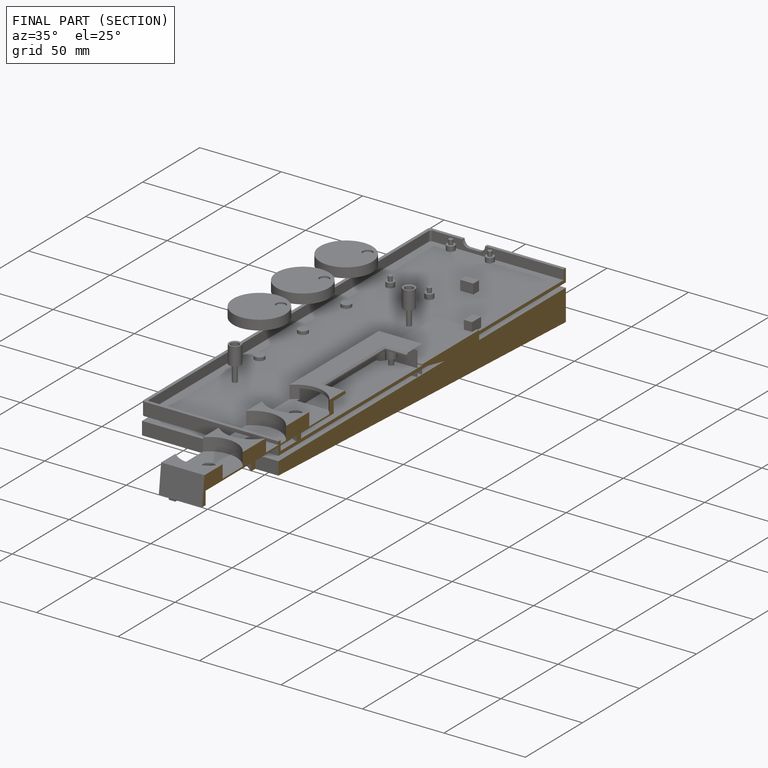
[diagram: finished part — half-section view (interior)]
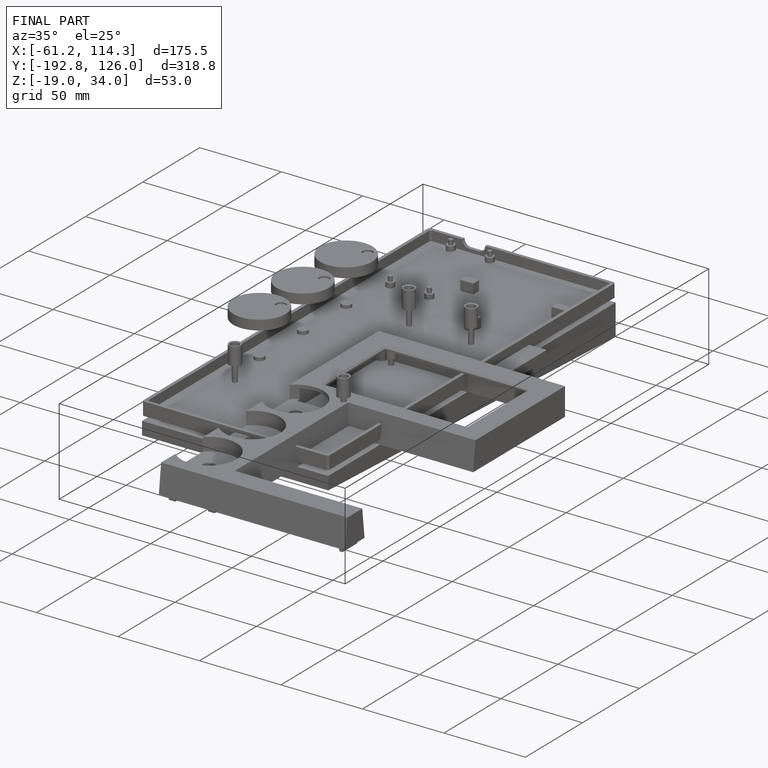
[diagram: finished part — iso view with bounding-box wireframe]
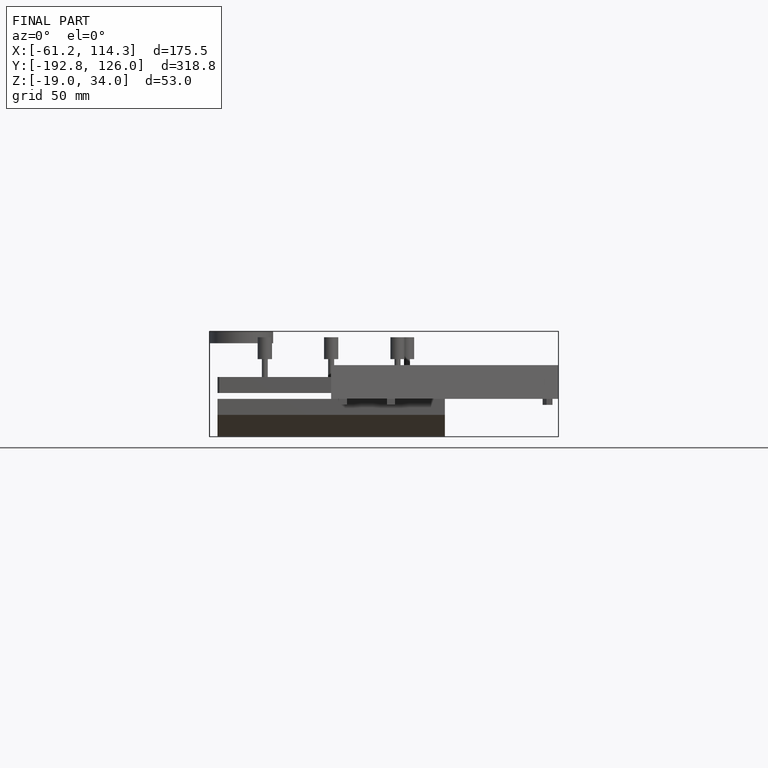
[diagram: finished part — front view with bounding-box wireframe]
